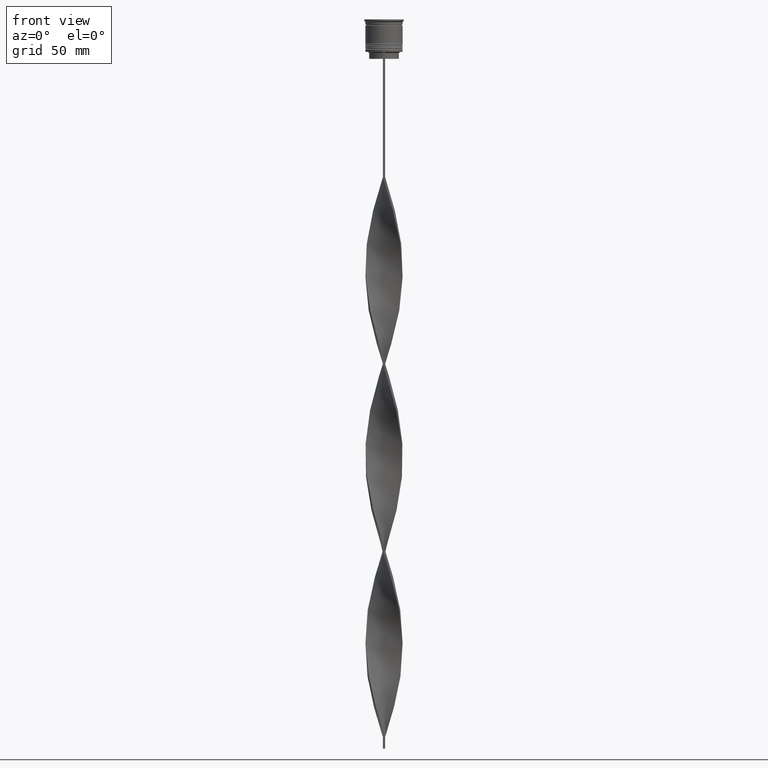
[diagram: clean part render]
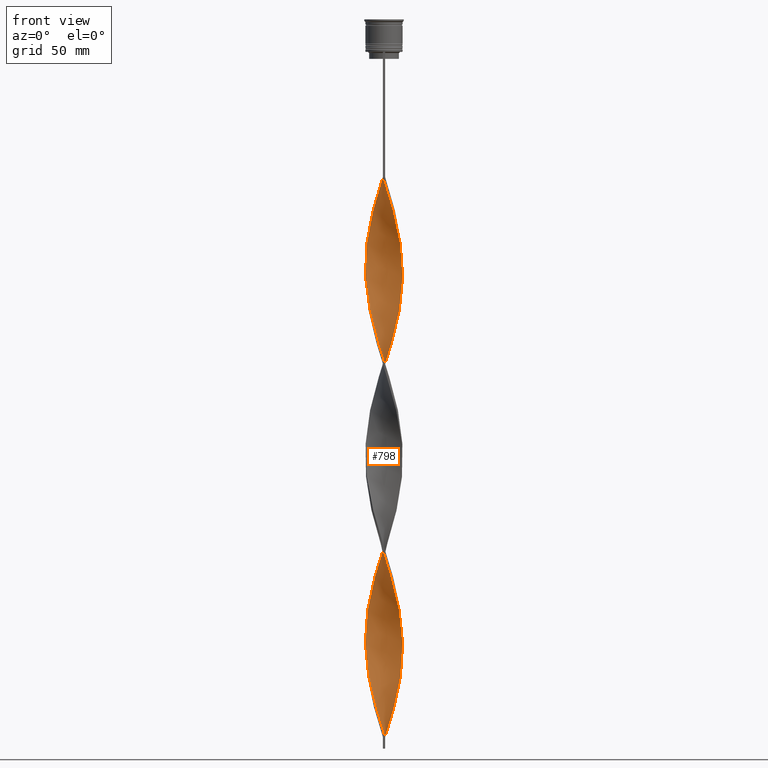
[diagram: same view with one face highlighted and labeled with its STEP entity id]
A machine part, front view. The second image highlights one B-rep face of the part: STEP entity #798.
In plain terms, the highlighted face is a freeform B-spline surface patch.
Its self-contained STEP definition (entity closure, byte-faithful):
#10 = CARTESIAN_POINT ( 'NONE',  ( 7.355047443376720118, 3.186420735822192096, -280.8833333333333826 ) ) ;
#36 = CARTESIAN_POINT ( 'NONE',  ( -3.534302299652435142, -7.221957428453229966, -218.6250000000000568 ) ) ;
#42 = CARTESIAN_POINT ( 'NONE',  ( -2.947664213147154655, 7.453943633173751415, -76.03333333333334565 ) ) ;
#53 = CARTESIAN_POINT ( 'NONE',  ( -6.901056943637172481, 4.077427260010560772, -176.4499999999999886 ) ) ;
#67 = CARTESIAN_POINT ( 'NONE',  ( 2.361026126641885714, 7.685929837894286187, -142.3083333333333371 ) ) ;
#73 = CARTESIAN_POINT ( 'NONE',  ( 5.776330198885578859, -5.593028810685832575, -250.7583333333333258 ) ) ;
#79 = CARTESIAN_POINT ( 'NONE',  ( -7.920097061150122464, 1.385649445451608619, -102.1416666666666799 ) ) ;
#99 = CARTESIAN_POINT ( 'NONE',  ( 4.830271518912643280, -6.427786469485482712, -246.7416666666666742 ) ) ;
#104 = CARTESIAN_POINT ( 'NONE',  ( -7.685929837894279970, -2.361026126641882605, -114.1916666666666771 ) ) ;
#110 = CARTESIAN_POINT ( 'NONE',  ( 7.355047443376720118, 3.186420735822192096, -280.8833333333333826 ) ) ;
#117 = CARTESIAN_POINT ( 'NONE',  ( -6.901056943637167151, -4.077427260010556331, -120.2166666666666686 ) ) ;
#123 = CARTESIAN_POINT ( 'NONE',  ( -3.765275523391983015, -7.104270692806150755, -134.2750000000000341 ) ) ;
#128 = CARTESIAN_POINT ( 'NONE',  ( -2.947664213147158652, -7.453943633173757632, -220.6333333333333542 ) ) ;
#135 = CARTESIAN_POINT ( 'NONE',  ( -7.453943633173752303, -2.947664213147154655, -116.2000000000000028 ) ) ;
#140 = CARTESIAN_POINT ( 'NONE',  ( -1.385649445451609063, -7.920097061150122464, -142.3083333333333371 ) ) ;
#144 = CARTESIAN_POINT ( 'NONE',  ( -6.427786469485481824, -4.830271518912644169, -206.5750000000000171 ) ) ;
#152 = CARTESIAN_POINT ( 'NONE',  ( -1.996607696852002345, -7.762960627548698866, -140.3000000000000114 ) ) ;
#163 = CARTESIAN_POINT ( 'NONE',  ( -6.010407640085651870, 5.303300858899104853, -88.08333333333334281 ) ) ;
#169 = CARTESIAN_POINT ( 'NONE',  ( 3.765275523391985679, -7.104270692806157861, -242.7250000000000227 ) ) ;
#174 = CARTESIAN_POINT ( 'NONE',  ( -7.685929837894279970, -2.361026126641882605, -114.1916666666666771 ) ) ;
#186 = CARTESIAN_POINT ( 'NONE',  ( -4.077427260010561660, -6.901056943637172481, -216.6166666666666742 ) ) ;
#192 = CARTESIAN_POINT ( 'NONE',  ( 3.534302299652426704, -7.221957428453226413, -158.3750000000000284 ) ) ;
#198 = CARTESIAN_POINT ( 'NONE',  ( -1.745319890619415171, 7.823289492240983023, -232.6833333333333371 ) ) ;
#205 = CARTESIAN_POINT ( 'NONE',  ( 0.4999999999999989453, -7.999999999999996447, -309.0000000000000000 ) ) ;
#213 = CARTESIAN_POINT ( 'NONE',  ( -6.580156458821110554, -4.620552220368685958, -282.8916666666667084 ) ) ;
#217 = CARTESIAN_POINT ( 'NONE',  ( 6.427786469485482712, 4.830271518912642392, -126.2416666666666600 ) ) ;
#219 = CARTESIAN_POINT ( 'NONE',  ( -3.186420735822189432, -7.355047443376712124, -296.9499999999999886 ) ) ;
#231 = CARTESIAN_POINT ( 'NONE',  ( -4.620552220368685958, 6.580156458821110554, -242.7250000000000227 ) ) ;
#235 = CARTESIAN_POINT ( 'NONE',  ( 7.355047443376720118, 3.186420735822192096, -120.2166666666666686 ) ) ;
#237 = CARTESIAN_POINT ( 'NONE',  ( -7.920097061150122464, 1.385649445451608619, -262.8083333333333371 ) ) ;
#243 = CARTESIAN_POINT ( 'NONE',  ( 0.5000000000000008882, 8.000000000000003553, -309.0000000000000000 ) ) ;
#247 = CARTESIAN_POINT ( 'NONE',  ( 0.4999999999999989453, -7.999999999999996447, -309.0000000000000000 ) ) ;
#251 = CARTESIAN_POINT ( 'NONE',  ( -4.830271518912642392, 6.427786469485483600, -166.4083333333333599 ) ) ;
#253 = CARTESIAN_POINT ( 'NONE',  ( -1.385649445451609063, -7.920097061150122464, -302.9750000000000227 ) ) ;
#266 = CARTESIAN_POINT ( 'NONE',  ( -6.766028581145814513, 4.297773521152309151, -252.7666666666667084 ) ) ;
#283 = CARTESIAN_POINT ( 'NONE',  ( 0.5000000000000002220, 2.666666666666670515, -309.0000000000000000 ) ) ;
#291 = CARTESIAN_POINT ( 'NONE',  ( -7.920097061150121576, 1.385649445451608841, -262.8083333333332803 ) ) ;
#294 = CARTESIAN_POINT ( 'NONE',  ( 5.303300858899110182, -6.010407640085657199, -88.08333333333334281 ) ) ;
#307 = CARTESIAN_POINT ( 'NONE',  ( -0.1296136545969470699, 8.039350853412313924, -150.3416666666666401 ) ) ;
#313 = CARTESIAN_POINT ( 'NONE',  ( 7.920097061150128681, 1.385649445451609285, -274.8583333333332916 ) ) ;
#330 = CARTESIAN_POINT ( 'NONE',  ( -4.620552220368688623, -6.580156458821115883, -214.6083333333333769 ) ) ;
#338 = CARTESIAN_POINT ( 'NONE',  ( -4.620552220368685958, 6.580156458821110554, -82.05833333333335133 ) ) ;
#358 = CARTESIAN_POINT ( 'NONE',  ( 7.685929837894286187, -2.361026126641885270, -262.8083333333332803 ) ) ;
#369 = CARTESIAN_POINT ( 'NONE',  ( 7.960649146587693181, -1.129613654596948402, -106.1583333333333456 ) ) ;
#375 = CARTESIAN_POINT ( 'NONE',  ( 3.186420735822192096, -7.355047443376720118, -240.7166666666666686 ) ) ;
#387 = CARTESIAN_POINT ( 'NONE',  ( 8.039350853412313924, 0.1296136545969474863, -110.1750000000000114 ) ) ;
#395 = CARTESIAN_POINT ( 'NONE',  ( -6.766028581145818954, -4.297773521152311815, -204.5666666666666629 ) ) ;
#401 = CARTESIAN_POINT ( 'NONE',  ( 6.901056943637168040, 4.077427260010555443, -200.5500000000000114 ) ) ;
#408 = CARTESIAN_POINT ( 'NONE',  ( 5.303300858899110182, -6.010407640085657199, -248.7500000000000000 ) ) ;
#419 = CARTESIAN_POINT ( 'NONE',  ( -7.999999999999996447, -0.4999999999999993339, -108.1666666666666714 ) ) ;
#426 = CARTESIAN_POINT ( 'NONE',  ( -7.999999999999996447, -0.4999999999999993339, -108.1666666666666714 ) ) ;
#432 = CARTESIAN_POINT ( 'NONE',  ( -1.745319890619418057, -7.823289492240988352, -224.6500000000000057 ) ) ;
#439 = CARTESIAN_POINT ( 'NONE',  ( -2.361026126641883049, 7.685929837894279082, -74.02500000000000568 ) ) ;
#444 = CARTESIAN_POINT ( 'NONE',  ( -6.901056943637167151, -4.077427260010556331, -120.2166666666666686 ) ) ;
#449 = CARTESIAN_POINT ( 'NONE',  ( -6.766028581145818954, -4.297773521152311815, -204.5666666666666629 ) ) ;
#454 = CARTESIAN_POINT ( 'NONE',  ( -6.580156458821110554, -4.620552220368685958, -122.2250000000000085 ) ) ;
#458 = CARTESIAN_POINT ( 'NONE',  ( 2.361026126641882161, -7.685929837894279970, -154.3583333333333201 ) ) ;
#465 = CARTESIAN_POINT ( 'NONE',  ( -7.979723957281220414, -0.7576315500242771783, -192.5166666666666799 ) ) ;
#472 = CARTESIAN_POINT ( 'NONE',  ( -5.106790515527257490, 6.178243328853340266, -84.06666666666667709 ) ) ;
#489 = CARTESIAN_POINT ( 'NONE',  ( 3.186420735822192096, -7.355047443376720118, -240.7166666666666686 ) ) ;
#494 = CARTESIAN_POINT ( 'NONE',  ( 1.745319890619414060, -7.823289492240984799, -152.3499999999999943 ) ) ;
#501 = CARTESIAN_POINT ( 'NONE',  ( 1.996607696852003233, 7.762960627548698866, -220.6333333333333542 ) ) ;
#514 = CARTESIAN_POINT ( 'NONE',  ( 6.580156458821112331, 4.620552220368682406, -202.5583333333333371 ) ) ;
#525 = CARTESIAN_POINT ( 'NONE',  ( 1.129613654596949068, 7.960649146587693181, -306.9916666666667879 ) ) ;
#533 = CARTESIAN_POINT ( 'NONE',  ( -4.077427260010556331, 6.901056943637167151, -240.7166666666666686 ) ) ;
#538 = CARTESIAN_POINT ( 'NONE',  ( 6.766028581145818954, 4.297773521152312703, -124.2333333333333343 ) ) ;
#557 = CARTESIAN_POINT ( 'NONE',  ( -6.010407640085651870, 5.303300858899104853, -248.7500000000000000 ) ) ;
#560 = CARTESIAN_POINT ( 'NONE',  ( -0.1296136545969470422, 8.039350853412313924, -150.3416666666666401 ) ) ;
#563 = CARTESIAN_POINT ( 'NONE',  ( -2.607565948252396737, -7.605824193947275269, -298.9583333333333712 ) ) ;
#570 = CARTESIAN_POINT ( 'NONE',  ( 6.427786469485481824, 4.830271518912641504, -286.9083333333333599 ) ) ;
#575 = CARTESIAN_POINT ( 'NONE',  ( 7.685929837894280858, 2.361026126641878609, -194.5250000000000341 ) ) ;
#595 = CARTESIAN_POINT ( 'NONE',  ( 1.385649445451606621, 7.920097061150121576, -222.6416666666667084 ) ) ;
#600 = CARTESIAN_POINT ( 'NONE',  ( 1.129613654596949290, 7.960649146587693181, -146.3250000000000171 ) ) ;
#615 = CARTESIAN_POINT ( 'NONE',  ( 7.355047443376720118, 3.186420735822192096, -120.2166666666666686 ) ) ;
#621 = FACE_OUTER_BOUND ( 'NONE', #2192, .T. ) ;
#633 = CARTESIAN_POINT ( 'NONE',  ( 6.766028581145818954, 4.297773521152312703, -124.2333333333333343 ) ) ;
#640 = CARTESIAN_POINT ( 'NONE',  ( 5.106790515527261931, 6.178243328853344707, -292.9333333333333371 ) ) ;
#643 = CARTESIAN_POINT ( 'NONE',  ( -0.4999999999999998890, 7.999999999999996447, -68.00000000000000000 ) ) ;
#649 = CARTESIAN_POINT ( 'NONE',  ( 7.823289492240990128, -1.745319890619416725, -104.1500000000000057 ) ) ;
#656 = CARTESIAN_POINT ( 'NONE',  ( 6.580156458821114995, -4.620552220368690399, -254.7749999999999488 ) ) ;
#681 = CARTESIAN_POINT ( 'NONE',  ( -2.947664213147158652, -7.453943633173757632, -220.6333333333333542 ) ) ;
#693 = CARTESIAN_POINT ( 'NONE',  ( 6.580156458821114995, -4.620552220368690399, -94.10833333333334849 ) ) ;
#702 = CARTESIAN_POINT ( 'NONE',  ( -7.960649146587693181, 1.129613654596953065, -186.4916666666667027 ) ) ;
#709 = CARTESIAN_POINT ( 'NONE',  ( 7.685929837894280858, 2.361026126641878609, -194.5250000000000341 ) ) ;
#713 = CARTESIAN_POINT ( 'NONE',  ( 0.1296136545969480414, -8.039350853412315701, -230.6750000000000114 ) ) ;
#719 = CARTESIAN_POINT ( 'NONE',  ( 7.979723957281222191, 0.7576315500242781775, -272.8500000000000227 ) ) ;
#725 = CARTESIAN_POINT ( 'NONE',  ( 5.106790515527256602, -6.178243328853340266, -164.3999999999999773 ) ) ;
#732 = CARTESIAN_POINT ( 'NONE',  ( -4.830271518912641504, 6.427786469485482712, -166.4083333333333599 ) ) ;
#743 = CARTESIAN_POINT ( 'NONE',  ( 7.762960627548698866, -1.996607696852002345, -180.4666666666666686 ) ) ;
#748 = CARTESIAN_POINT ( 'NONE',  ( 8.039350853412308595, -0.1296136545969525100, -186.4916666666667027 ) ) ;
#754 = CARTESIAN_POINT ( 'NONE',  ( -7.920097061150129569, -1.385649445451604622, -194.5250000000000341 ) ) ;
#759 = CARTESIAN_POINT ( 'NONE',  ( -7.104270692806151644, 3.765275523391983459, -94.10833333333334849 ) ) ;
#763 = CARTESIAN_POINT ( 'NONE',  ( -4.830271518912638840, -6.427786469485477383, -130.2583333333333542 ) ) ;
#769 = CARTESIAN_POINT ( 'NONE',  ( -7.685929837894287076, 2.361026126641882605, -182.4749999999999943 ) ) ;
#776 = CARTESIAN_POINT ( 'NONE',  ( 8.039350853412310371, -0.1296136545969525100, -186.4916666666667027 ) ) ;
#783 = CARTESIAN_POINT ( 'NONE',  ( 5.593028810685827246, -5.776330198885574418, -166.4083333333333599 ) ) ;
#792 = CARTESIAN_POINT ( 'NONE',  ( 7.221957428453231742, -3.534302299652430701, -258.7916666666666288 ) ) ;
#798 = ADVANCED_FACE ( 'NONE', ( #621 ), #2179, .T. ) ;
#802 = CARTESIAN_POINT ( 'NONE',  ( -1.385649445451609285, -7.920097061150121576, -142.3083333333333371 ) ) ;
#811 = CARTESIAN_POINT ( 'NONE',  ( 0.7576315500242793988, 7.979723957281213309, -224.6500000000000057 ) ) ;
#824 = CARTESIAN_POINT ( 'NONE',  ( 1.996607696852003233, 7.762960627548698866, -220.6333333333333542 ) ) ;
#841 = CARTESIAN_POINT ( 'NONE',  ( -7.762960627548698866, 1.996607696852001457, -260.8000000000000114 ) ) ;
#844 = CARTESIAN_POINT ( 'NONE',  ( 0.1296136545969480136, -8.039350853412315701, -70.00833333333335418 ) ) ;
#847 = CARTESIAN_POINT ( 'NONE',  ( -0.7576315500242785106, -7.979723957281213309, -304.9833333333333485 ) ) ;
#853 = CARTESIAN_POINT ( 'NONE',  ( 5.593028810685833463, 5.776330198885578859, -290.9250000000000682 ) ) ;
#861 = CARTESIAN_POINT ( 'NONE',  ( -4.297773521152310039, -6.766028581145813625, -292.9333333333333371 ) ) ;
#866 = CARTESIAN_POINT ( 'NONE',  ( 7.453943633173757632, -2.947664213147156875, -100.1333333333333400 ) ) ;
#869 = CARTESIAN_POINT ( 'NONE',  ( -7.221957428453224637, -3.534302299652427148, -278.8750000000000000 ) ) ;
#883 = CARTESIAN_POINT ( 'NONE',  ( 0.7576315500242793988, 7.979723957281213309, -224.6500000000000057 ) ) ;
#886 = CARTESIAN_POINT ( 'NONE',  ( -6.178243328853344707, 5.106790515527261931, -172.4333333333333371 ) ) ;
#888 = CARTESIAN_POINT ( 'NONE',  ( -7.999999999999996447, -0.4999999999999993339, -268.8333333333333712 ) ) ;
#903 = CARTESIAN_POINT ( 'NONE',  ( -3.765275523391983459, -7.104270692806151644, -294.9416666666667197 ) ) ;
#907 = CARTESIAN_POINT ( 'NONE',  ( 3.186420735822192096, -7.355047443376720118, -80.05000000000001137 ) ) ;
#941 = CARTESIAN_POINT ( 'NONE',  ( 8.000000000000003553, -0.5000000000000004441, -108.1666666666666714 ) ) ;
#947 = CARTESIAN_POINT ( 'NONE',  ( 6.010407640085657199, 5.303300858899108405, -288.9166666666666856 ) ) ;
#965 = CARTESIAN_POINT ( 'NONE',  ( -0.4999999999999998890, -8.000000000000003553, -228.6666666666666856 ) ) ;
#976 = CARTESIAN_POINT ( 'NONE',  ( 6.901056943637172481, -4.077427260010559884, -96.11666666666667425 ) ) ;
#984 = CARTESIAN_POINT ( 'NONE',  ( -7.823289492240988352, 1.745319890619417613, -184.4833333333333201 ) ) ;
#994 = CARTESIAN_POINT ( 'NONE',  ( -1.745319890619415171, 7.823289492240983023, -72.01666666666667993 ) ) ;
#1005 = CARTESIAN_POINT ( 'NONE',  ( 3.534302299652431145, 7.221957428453231742, -138.2916666666667140 ) ) ;
#1013 = CARTESIAN_POINT ( 'NONE',  ( 8.000000000000003553, -0.5000000000000004441, -268.8333333333333712 ) ) ;
#1019 = CARTESIAN_POINT ( 'NONE',  ( 7.960649146587686964, 1.129613654596949512, -190.5083333333333542 ) ) ;
#1024 = CARTESIAN_POINT ( 'NONE',  ( 7.762960627548706860, 1.996607696852002789, -276.8666666666667311 ) ) ;
#1032 = CARTESIAN_POINT ( 'NONE',  ( -7.920097061150128681, -1.385649445451604844, -194.5250000000000341 ) ) ;
#1037 = CARTESIAN_POINT ( 'NONE',  ( 4.297773521152310927, 6.766028581145813625, -212.6000000000000227 ) ) ;
#1043 = CARTESIAN_POINT ( 'NONE',  ( 1.996607696852003233, -7.762960627548705084, -236.6999999999999886 ) ) ;
#1048 = CARTESIAN_POINT ( 'NONE',  ( 7.104270692806154308, -3.765275523391980794, -174.4416666666666629 ) ) ;
#1051 = LINE ( 'NONE', #3581, #2873 ) ;
#1057 = CARTESIAN_POINT ( 'NONE',  ( 6.766028581145813625, -4.297773521152310039, -172.4333333333333371 ) ) ;
#1062 = CARTESIAN_POINT ( 'NONE',  ( -3.534302299652435142, -7.221957428453229966, -218.6250000000000284 ) ) ;
#1074 = CARTESIAN_POINT ( 'NONE',  ( -0.4999999999999998890, 7.999999999999996447, -68.00000000000000000 ) ) ;
#1078 = CARTESIAN_POINT ( 'NONE',  ( -7.979723957281215085, 0.7576315500242779555, -104.1500000000000057 ) ) ;
#1084 = CARTESIAN_POINT ( 'NONE',  ( -7.104270692806159637, -3.765275523391982126, -202.5583333333333371 ) ) ;
#1090 = CARTESIAN_POINT ( 'NONE',  ( 7.605824193947272605, -2.607565948252400290, -178.4583333333333144 ) ) ;
#1094 = CARTESIAN_POINT ( 'NONE',  ( 6.010407640085650982, -5.303300858899105741, -168.4166666666666572 ) ) ;
#1100 = CARTESIAN_POINT ( 'NONE',  ( -0.4999999999999998890, -8.000000000000003553, -228.6666666666666856 ) ) ;
#1106 = CARTESIAN_POINT ( 'NONE',  ( -7.823289492240983023, -1.745319890619414727, -112.1833333333333229 ) ) ;
#1129 = CARTESIAN_POINT ( 'NONE',  ( 4.077427260010555443, -6.901056943637167151, -160.3833333333333258 ) ) ;
#1138 = CARTESIAN_POINT ( 'NONE',  ( -8.039350853412308595, 0.1296136545969479303, -266.8249999999999886 ) ) ;
#1152 = CARTESIAN_POINT ( 'NONE',  ( 5.776330198885571754, 5.593028810685829910, -206.5750000000000171 ) ) ;
#1156 = CARTESIAN_POINT ( 'NONE',  ( 4.077427260010560772, 6.901056943637172481, -136.2833333333333314 ) ) ;
#1159 = CARTESIAN_POINT ( 'NONE',  ( -7.453943633173752303, -2.947664213147154655, -276.8666666666667311 ) ) ;
#1168 = CARTESIAN_POINT ( 'NONE',  ( -1.385649445451609285, -7.920097061150121576, -302.9750000000000227 ) ) ;
#1172 = CARTESIAN_POINT ( 'NONE',  ( 0.5000000000000008882, 8.000000000000003553, -148.3333333333333428 ) ) ;
#1174 = CARTESIAN_POINT ( 'NONE',  ( -7.979723957281215085, 0.7576315500242779555, -264.8166666666667197 ) ) ;
#1180 = CARTESIAN_POINT ( 'NONE',  ( 6.766028581145818954, 4.297773521152312703, -284.9000000000000341 ) ) ;
#1189 = CARTESIAN_POINT ( 'NONE',  ( 7.221957428453223748, 3.534302299652429369, -198.5416666666667140 ) ) ;
#1194 = CARTESIAN_POINT ( 'NONE',  ( 4.297773521152313592, -6.766028581145818954, -84.06666666666667709 ) ) ;
#1198 = CARTESIAN_POINT ( 'NONE',  ( -7.762960627548698866, 1.996607696852001457, -260.8000000000000114 ) ) ;
#1217 = CARTESIAN_POINT ( 'NONE',  ( -7.823289492240983023, -1.745319890619414727, -272.8500000000000227 ) ) ;
#1220 = CARTESIAN_POINT ( 'NONE',  ( 8.039350853412313924, 0.1296136545969474863, -110.1749999999999972 ) ) ;
#1230 = CARTESIAN_POINT ( 'NONE',  ( 0.5000000000000008882, 8.000000000000003553, -309.0000000000000000 ) ) ;
#1234 = CARTESIAN_POINT ( 'NONE',  ( -1.745319890619415171, 7.823289492240983023, -232.6833333333333371 ) ) ;
#1246 = CARTESIAN_POINT ( 'NONE',  ( 2.607565948252398513, -7.605824193947282374, -78.04166666666667140 ) ) ;
#1256 = CARTESIAN_POINT ( 'NONE',  ( 7.104270692806158749, 3.765275523391986123, -282.8916666666667084 ) ) ;
#1273 = CARTESIAN_POINT ( 'NONE',  ( -0.4999999999999998890, -8.000000000000003553, -68.00000000000000000 ) ) ;
#1281 = CARTESIAN_POINT ( 'NONE',  ( 3.534302299652431145, 7.221957428453231742, -298.9583333333334281 ) ) ;
#1298 = CARTESIAN_POINT ( 'NONE',  ( -8.039350853412315701, -0.1296136545969501508, -190.5083333333333826 ) ) ;
#1311 = CARTESIAN_POINT ( 'NONE',  ( 0.5000000000000008882, 8.000000000000003553, -148.3333333333333428 ) ) ;
#1317 = CARTESIAN_POINT ( 'NONE',  ( -7.762960627548706860, -1.996607696852001901, -196.5333333333333314 ) ) ;
#1324 = CARTESIAN_POINT ( 'NONE',  ( -7.823289492240983023, -1.745319890619414727, -112.1833333333333229 ) ) ;
#1342 = CARTESIAN_POINT ( 'NONE',  ( 6.178243328853345595, -5.106790515527261043, -252.7666666666667084 ) ) ;
#1347 = CARTESIAN_POINT ( 'NONE',  ( 6.178243328853342042, 5.106790515527255714, -204.5666666666666629 ) ) ;
#1353 = CARTESIAN_POINT ( 'NONE',  ( -5.106790515527262819, -6.178243328853344707, -212.6000000000000227 ) ) ;
#1362 = CARTESIAN_POINT ( 'NONE',  ( -3.534302299652427592, 7.221957428453224637, -78.04166666666667140 ) ) ;
#1367 = CARTESIAN_POINT ( 'NONE',  ( 6.427786469485475607, -4.830271518912641504, -170.4250000000000398 ) ) ;
#1373 = CARTESIAN_POINT ( 'NONE',  ( -7.453943633173757632, 2.947664213147157763, -180.4666666666666686 ) ) ;
#1379 = CARTESIAN_POINT ( 'NONE',  ( 0.4999999999999989453, -7.999999999999996447, -148.3333333333333428 ) ) ;
#1387 = CARTESIAN_POINT ( 'NONE',  ( -8.039350853412308595, 0.1296136545969479303, -106.1583333333333456 ) ) ;
#1393 = CARTESIAN_POINT ( 'NONE',  ( -5.776330198885575307, 5.593028810685836127, -170.4250000000000398 ) ) ;
#1402 = CARTESIAN_POINT ( 'NONE',  ( 6.010407640085650982, -5.303300858899105741, -168.4166666666666572 ) ) ;
#1408 = CARTESIAN_POINT ( 'NONE',  ( -7.104270692806150755, 3.765275523391983015, -94.10833333333334849 ) ) ;
#1414 = CARTESIAN_POINT ( 'NONE',  ( 4.297773521152313592, -6.766028581145818954, -244.7333333333333201 ) ) ;
#1419 = CARTESIAN_POINT ( 'NONE',  ( -7.920097061150121576, 1.385649445451608841, -102.1416666666666941 ) ) ;
#1424 = CARTESIAN_POINT ( 'NONE',  ( -5.593028810685828134, 5.776330198885573530, -246.7416666666667027 ) ) ;
#1431 = CARTESIAN_POINT ( 'NONE',  ( -6.010407640085658088, -5.303300858899107517, -208.5833333333333428 ) ) ;
#1437 = CARTESIAN_POINT ( 'NONE',  ( -7.960649146587688740, -1.129613654596947070, -110.1749999999999972 ) ) ;
#1460 = CARTESIAN_POINT ( 'NONE',  ( 4.297773521152310927, 6.766028581145813625, -212.6000000000000227 ) ) ;
#1466 = CARTESIAN_POINT ( 'NONE',  ( 5.106790515527261931, 6.178243328853344707, -132.2666666666666799 ) ) ;
#1469 = CARTESIAN_POINT ( 'NONE',  ( -7.685929837894279970, -2.361026126641882605, -274.8583333333332916 ) ) ;
#1480 = CARTESIAN_POINT ( 'NONE',  ( 7.823289492240984799, 1.745319890619413616, -192.5166666666666799 ) ) ;
#1484 = CARTESIAN_POINT ( 'NONE',  ( 2.947664213147157763, 7.453943633173757632, -140.3000000000000114 ) ) ;
#1487 = CARTESIAN_POINT ( 'NONE',  ( 0.4999999999999989453, -7.999999999999996447, -309.0000000000000000 ) ) ;
#1500 = VERTEX_POINT ( 'NONE', #1230 ) ;
#1504 = CARTESIAN_POINT ( 'NONE',  ( -5.303300858899108405, 6.010407640085658088, -168.4166666666666572 ) ) ;
#1522 = CARTESIAN_POINT ( 'NONE',  ( 7.999999999999996447, 0.4999999999999983902, -188.5000000000000000 ) ) ;
#1546 = CARTESIAN_POINT ( 'NONE',  ( 6.178243328853342042, 5.106790515527255714, -204.5666666666666629 ) ) ;
#1549 = CARTESIAN_POINT ( 'NONE',  ( -2.607565948252397625, 7.605824193947282374, -158.3750000000000284 ) ) ;
#1563 = CARTESIAN_POINT ( 'NONE',  ( -0.7576315500242776224, 7.979723957281220414, -152.3499999999999943 ) ) ;
#1571 = CARTESIAN_POINT ( 'NONE',  ( 7.762960627548706860, 1.996607696852002789, -276.8666666666667311 ) ) ;
#1591 = CARTESIAN_POINT ( 'NONE',  ( 4.077427260010560772, 6.901056943637172481, -296.9499999999999886 ) ) ;
#1600 = CARTESIAN_POINT ( 'NONE',  ( -5.106790515527257490, 6.178243328853340266, -84.06666666666667709 ) ) ;
#1609 = CARTESIAN_POINT ( 'NONE',  ( 7.979723957281222191, 0.7576315500242781775, -112.1833333333333229 ) ) ;
#1615 = CARTESIAN_POINT ( 'NONE',  ( -5.106790515527262819, -6.178243328853344707, -212.6000000000000227 ) ) ;
#1628 = CARTESIAN_POINT ( 'NONE',  ( 4.077427260010560772, 6.901056943637172481, -136.2833333333333314 ) ) ;
#1635 = CARTESIAN_POINT ( 'NONE',  ( 5.303300858899110182, -6.010407640085657199, -248.7500000000000000 ) ) ;
#1642 = CARTESIAN_POINT ( 'NONE',  ( 7.762960627548698866, -1.996607696852002345, -180.4666666666666686 ) ) ;
#1647 = CARTESIAN_POINT ( 'NONE',  ( 5.106790515527261931, 6.178243328853344707, -132.2666666666666799 ) ) ;
#1654 = CARTESIAN_POINT ( 'NONE',  ( 0.7576315500242786216, -7.979723957281222191, -232.6833333333333371 ) ) ;
#1661 = CARTESIAN_POINT ( 'NONE',  ( 6.580156458821112331, 4.620552220368682406, -202.5583333333333371 ) ) ;
#1672 = CARTESIAN_POINT ( 'NONE',  ( 5.776330198885578859, -5.593028810685832575, -250.7583333333332973 ) ) ;
#1680 = CARTESIAN_POINT ( 'NONE',  ( -7.762960627548698866, 1.996607696852001457, -100.1333333333333400 ) ) ;
#1685 = CARTESIAN_POINT ( 'NONE',  ( -4.297773521152310039, -6.766028581145813625, -132.2666666666666799 ) ) ;
#1690 = CARTESIAN_POINT ( 'NONE',  ( -5.593028810685836127, -5.776330198885574418, -210.5916666666666686 ) ) ;
#1699 = CARTESIAN_POINT ( 'NONE',  ( -5.776330198885573530, -5.593028810685827246, -126.2416666666666600 ) ) ;
#1703 = CARTESIAN_POINT ( 'NONE',  ( 1.745319890619414060, -7.823289492240984799, -152.3499999999999943 ) ) ;
#1708 = CARTESIAN_POINT ( 'NONE',  ( -2.361026126641883049, -7.685929837894287076, -222.6416666666667084 ) ) ;
#1713 = CARTESIAN_POINT ( 'NONE',  ( -7.355047443376712124, 3.186420735822188988, -96.11666666666667425 ) ) ;
#1720 = CARTESIAN_POINT ( 'NONE',  ( -7.762960627548698866, 1.996607696852001457, -100.1333333333333400 ) ) ;
#1728 = CARTESIAN_POINT ( 'NONE',  ( 0.7576315500242786216, -7.979723957281222191, -232.6833333333333371 ) ) ;
#1736 = CARTESIAN_POINT ( 'NONE',  ( -4.077427260010556331, 6.901056943637167151, -80.05000000000001137 ) ) ;
#1747 = CARTESIAN_POINT ( 'NONE',  ( 8.039350853412313924, 0.1296136545969474863, -270.8416666666666401 ) ) ;
#1753 = CARTESIAN_POINT ( 'NONE',  ( -5.303300858899104853, -6.010407640085650982, -128.2500000000000000 ) ) ;
#1759 = CARTESIAN_POINT ( 'NONE',  ( -7.960649146587688740, -1.129613654596947070, -270.8416666666666401 ) ) ;
#1773 = CARTESIAN_POINT ( 'NONE',  ( -7.104270692806151644, 3.765275523391983459, -254.7749999999999488 ) ) ;
#1784 = CARTESIAN_POINT ( 'NONE',  ( 0.4999999999999995559, -2.666666666666663410, -309.0000000000000000 ) ) ;
#1793 = CARTESIAN_POINT ( 'NONE',  ( -4.830271518912639728, -6.427786469485477383, -290.9250000000000682 ) ) ;
#1799 = CARTESIAN_POINT ( 'NONE',  ( 7.104270692806158749, 3.765275523391986123, -122.2250000000000085 ) ) ;
#1801 = CARTESIAN_POINT ( 'NONE',  ( -2.947664213147154655, 7.453943633173751415, -236.6999999999999886 ) ) ;
#1813 = CARTESIAN_POINT ( 'NONE',  ( -5.776330198885573530, -5.593028810685827246, -286.9083333333334167 ) ) ;
#1817 = CARTESIAN_POINT ( 'NONE',  ( 7.979723957281222191, 0.7576315500242781775, -112.1833333333333229 ) ) ;
#1819 = CARTESIAN_POINT ( 'NONE',  ( -3.534302299652427592, 7.221957428453224637, -238.7083333333333144 ) ) ;
#1830 = CARTESIAN_POINT ( 'NONE',  ( 7.453943633173752303, 2.947664213147153767, -196.5333333333333314 ) ) ;
#1834 = CARTESIAN_POINT ( 'NONE',  ( 1.385649445451609729, -7.920097061150128681, -74.02500000000000568 ) ) ;
#1842 = CARTESIAN_POINT ( 'NONE',  ( 5.106790515527261931, 6.178243328853344707, -292.9333333333333371 ) ) ;
#1850 = CARTESIAN_POINT ( 'NONE',  ( -5.593028810685828134, 5.776330198885573530, -246.7416666666666742 ) ) ;
#1856 = CARTESIAN_POINT ( 'NONE',  ( -0.7576315500242776224, 7.979723957281220414, -152.3499999999999943 ) ) ;
#1868 = CARTESIAN_POINT ( 'NONE',  ( 3.186420735822192096, -7.355047443376720118, -80.05000000000001137 ) ) ;
#1873 = CARTESIAN_POINT ( 'NONE',  ( 7.960649146587693181, -1.129613654596948624, -106.1583333333333456 ) ) ;
#1877 = VERTEX_POINT ( 'NONE', #3827 ) ;
#1886 = CARTESIAN_POINT ( 'NONE',  ( 6.010407640085657199, 5.303300858899108405, -128.2500000000000000 ) ) ;
#1894 = CARTESIAN_POINT ( 'NONE',  ( 4.620552220368690399, 6.580156458821114995, -294.9416666666667197 ) ) ;
#1897 = CARTESIAN_POINT ( 'NONE',  ( -1.129613654596947514, 7.960649146587686964, -70.00833333333335418 ) ) ;
#1913 = CARTESIAN_POINT ( 'NONE',  ( 7.221957428453231742, -3.534302299652430701, -258.7916666666666288 ) ) ;
#1928 = CARTESIAN_POINT ( 'NONE',  ( 0.7576315500242786216, -7.979723957281222191, -72.01666666666667993 ) ) ;
#1936 = CARTESIAN_POINT ( 'NONE',  ( -2.361026126641883049, -7.685929837894287076, -222.6416666666667084 ) ) ;
#1942 = CARTESIAN_POINT ( 'NONE',  ( -3.534302299652427592, 7.221957428453224637, -78.04166666666667140 ) ) ;
#1948 = CARTESIAN_POINT ( 'NONE',  ( 7.453943633173757632, -2.947664213147156875, -100.1333333333333400 ) ) ;
#1955 = CARTESIAN_POINT ( 'NONE',  ( -7.104270692806160525, -3.765275523391982571, -202.5583333333333371 ) ) ;
#1961 = CARTESIAN_POINT ( 'NONE',  ( 7.221957428453223748, 3.534302299652429369, -198.5416666666666856 ) ) ;
#1967 = CARTESIAN_POINT ( 'NONE',  ( -2.607565948252397625, 7.605824193947283263, -158.3750000000000284 ) ) ;
#1974 = CARTESIAN_POINT ( 'NONE',  ( 0.5000000000000008882, 8.000000000000003553, -309.0000000000000000 ) ) ;
#1982 = CARTESIAN_POINT ( 'NONE',  ( -1.996607696852002345, -7.762960627548698866, -140.3000000000000114 ) ) ;
#1993 = CARTESIAN_POINT ( 'NONE',  ( -7.960649146587693181, 1.129613654596953065, -186.4916666666667027 ) ) ;
#2000 = CARTESIAN_POINT ( 'NONE',  ( 1.129613654596949290, 7.960649146587693181, -306.9916666666667311 ) ) ;
#2004 = CARTESIAN_POINT ( 'NONE',  ( 7.453943633173752303, 2.947664213147153767, -196.5333333333333314 ) ) ;
#2010 = CARTESIAN_POINT ( 'NONE',  ( -6.901056943637172481, 4.077427260010560772, -176.4499999999999886 ) ) ;
#2016 = CARTESIAN_POINT ( 'NONE',  ( -6.010407640085651870, 5.303300858899104853, -88.08333333333334281 ) ) ;
#2021 = CARTESIAN_POINT ( 'NONE',  ( 0.4999999999999989453, -7.999999999999996447, -148.3333333333333428 ) ) ;
#2025 = CARTESIAN_POINT ( 'NONE',  ( -1.385649445451608841, 7.920097061150129569, -154.3583333333333201 ) ) ;
#2031 = CARTESIAN_POINT ( 'NONE',  ( -4.830271518912639728, -6.427786469485477383, -130.2583333333333826 ) ) ;
#2037 = CARTESIAN_POINT ( 'NONE',  ( 7.605824193947273493, -2.607565948252400290, -178.4583333333333428 ) ) ;
#2045 = CARTESIAN_POINT ( 'NONE',  ( 8.000000000000003553, -0.5000000000000004441, -268.8333333333333712 ) ) ;
#2054 = CARTESIAN_POINT ( 'NONE',  ( -0.1296136545969484577, -8.039350853412310371, -146.3250000000000171 ) ) ;
#2059 = CARTESIAN_POINT ( 'NONE',  ( 1.385649445451606399, 7.920097061150122464, -222.6416666666667084 ) ) ;
#2073 = CARTESIAN_POINT ( 'NONE',  ( -7.453943633173752303, -2.947664213147154655, -276.8666666666667311 ) ) ;
#2093 = CARTESIAN_POINT ( 'NONE',  ( -2.607565948252396737, -7.605824193947274381, -298.9583333333334281 ) ) ;
#2096 = CARTESIAN_POINT ( 'NONE',  ( 2.361026126641885714, 7.685929837894286187, -142.3083333333333371 ) ) ;
#2114 = CARTESIAN_POINT ( 'NONE',  ( -0.1296136545969484577, -8.039350853412310371, -306.9916666666667311 ) ) ;
#2119 = CARTESIAN_POINT ( 'NONE',  ( -4.297773521152312703, 6.766028581145818954, -164.3999999999999773 ) ) ;
#2122 = CARTESIAN_POINT ( 'NONE',  ( -6.178243328853340266, -5.106790515527256602, -284.9000000000000341 ) ) ;
#2137 = CARTESIAN_POINT ( 'NONE',  ( -0.4999999999999998890, 7.999999999999996447, -228.6666666666666856 ) ) ;
#2143 = CARTESIAN_POINT ( 'NONE',  ( -4.297773521152310039, -6.766028581145813625, -292.9333333333333371 ) ) ;
#2155 = CARTESIAN_POINT ( 'NONE',  ( 5.303300858899105741, 6.010407640085650094, -208.5833333333333428 ) ) ;
#2159 = CARTESIAN_POINT ( 'NONE',  ( 8.000000000000003553, -0.5000000000000004441, -108.1666666666666714 ) ) ;
#2167 = CARTESIAN_POINT ( 'NONE',  ( 7.221957428453231742, -3.534302299652430701, -98.12500000000001421 ) ) ;
#2177 = CARTESIAN_POINT ( 'NONE',  ( -0.4999999999999998890, -8.000000000000003553, -68.00000000000000000 ) ) ;
#2179 =( BOUNDED_SURFACE ( )  B_SPLINE_SURFACE ( 1, 2, ( 
 ( #2177, #844, #2474, #1834, #2834, #2816, #907, #4103, #1194, #3470, #294, #2752, #3762, #4082, #3098, #3382, #866, #4015, #2769, #1873, #2159, #1220, #1817, #3446, #2429, #3699, #235, #1799, #538, #217, #2453, #3081, #1466, #3742, #1156, #2411, #1484, #2096, #4035, #600, #1172, #560, #1856, #3139, #3407, #1549, #3718, #3426, #2119, #251, #1504, #4056, #886, #2267, #53, #3842, #3557, #3887, #984, #702, #2242, #1298, #3821, #1032, #1317, #2898, #3239, #1955, #395, #3537, #2589, #2916, #1615, #330, #2569, #36, #681, #1936, #3219, #3578, #965, #3493, #1654, #2281, #3201, #2219, #375, #2878, #2939, #99, #1635, #73, #1342, #656, #3179, #1913, #3867, #358, #3160, #3512, #1013, #2610, #719, #313, #1571, #2854, #10, #1256, #2526, #3802, #947, #2200, #640, #1894, #1591, #1281, #2548, #3318, #3947, #2000, #1974 ),
 ( #1074, #3988, #3964, #439, #2715, #1362, #1736, #3657, #472, #3341, #2016, #3302, #2694, #759, #1713, #2303, #1680, #1419, #3016, #3286, #419, #1437, #1106, #174, #135, #2962, #117, #454, #2995, #1699, #1753, #2031, #2629, #2981, #3599, #2365, #152, #802, #3261, #2054, #1379, #2651, #494, #3926, #3032, #192, #1129, #2329, #2391, #3679, #1402, #3620, #3905, #1048, #2676, #1090, #743, #2346, #3636, #776, #1522, #4032, #1480, #575, #1830, #1189, #4011, #514, #1546, #1152, #2155, #3078, #1460, #2746, #3442, #3739, #824, #595, #883, #3404, #2137, #3695, #1234, #2831, #3422, #2408, #533, #231, #3112, #1850, #557, #3136, #266, #1773, #2813, #3714, #841, #291, #4100, #3054, #2491, #4079, #1217, #2765, #2073, #2471, #2448, #213, #3361, #1813, #3759, #1793, #861, #903, #3378, #2093, #3094, #1168, #2426, #2114, #247 ) ),
 .UNSPECIFIED., .F., .F., .F. ) 
 B_SPLINE_SURFACE_WITH_KNOTS ( ( 2, 2 ),
 ( 3, 2, 2, 2, 2, 2, 2, 2, 2, 2, 2, 2, 2, 2, 2, 2, 2, 2, 2, 2, 2, 2, 2, 2, 2, 2, 2, 2, 2, 2, 2, 2, 2, 2, 2, 2, 2, 2, 2, 2, 2, 2, 2, 2, 2, 2, 2, 2, 2, 2, 2, 2, 2, 2, 2, 2, 2, 2, 2, 2, 3 ),
 ( 0.000000000000000000, 1.000000000000000000 ),
 ( 0.000000000000000000, 0.01250000000000000069, 0.02500000000000000139, 0.03749999999999999861, 0.05000000000000000278, 0.06250000000000000000, 0.07499999999999999722, 0.08749999999999999445, 0.1000000000000000056, 0.1125000000000000028, 0.1250000000000000000, 0.1375000000000000111, 0.1499999999999999944, 0.1625000000000000056, 0.1749999999999999889, 0.1875000000000000000, 0.2000000000000000111, 0.2124999999999999944, 0.2250000000000000056, 0.2374999999999999889, 0.2500000000000000000, 0.2625000000000000111, 0.2750000000000000222, 0.2874999999999999778, 0.2999999999999999889, 0.3125000000000000000, 0.3250000000000000111, 0.3375000000000000222, 0.3499999999999999778, 0.3624999999999999889, 0.3750000000000000000, 0.3875000000000000111, 0.4000000000000000222, 0.4124999999999999778, 0.4249999999999999889, 0.4375000000000000000, 0.4500000000000000111, 0.4625000000000000222, 0.4749999999999999778, 0.4874999999999999889, 0.5000000000000000000, 0.5124999999999999556, 0.5250000000000000222, 0.5374999999999999778, 0.5500000000000000444, 0.5625000000000000000, 0.5749999999999999556, 0.5875000000000000222, 0.5999999999999999778, 0.6125000000000000444, 0.6250000000000000000, 0.6374999999999999556, 0.6500000000000000222, 0.6624999999999999778, 0.6750000000000000444, 0.6875000000000000000, 0.6999999999999999556, 0.7125000000000000222, 0.7249999999999999778, 0.7375000000000000444, 0.7500000000000000000 ),
 .UNSPECIFIED. ) 
 GEOMETRIC_REPRESENTATION_ITEM ( )  RATIONAL_B_SPLINE_SURFACE ( (
 ( 1.000000000000000000, 0.9969173337331279638, 1.000000000000000000, 0.9969173337331279638, 1.000000000000000000, 0.9969173337331279638, 1.000000000000000000, 0.9969173337331279638, 1.000000000000000000, 0.9969173337331279638, 1.000000000000000000, 0.9969173337331279638, 1.000000000000000000, 0.9969173337331279638, 1.000000000000000000, 0.9969173337331279638, 1.000000000000000000, 0.9969173337331279638, 1.000000000000000000, 0.9969173337331279638, 1.000000000000000000, 0.9969173337331279638, 1.000000000000000000, 0.9969173337331279638, 1.000000000000000000, 0.9969173337331279638, 1.000000000000000000, 0.9969173337331279638, 1.000000000000000000, 0.9969173337331279638, 1.000000000000000000, 0.9969173337331279638, 1.000000000000000000, 0.9969173337331279638, 1.000000000000000000, 0.9969173337331279638, 1.000000000000000000, 0.9969173337331279638, 1.000000000000000000, 0.9969173337331279638, 1.000000000000000000, 0.9969173337331279638, 1.000000000000000000, 0.9969173337331279638, 1.000000000000000000, 0.9969173337331279638, 1.000000000000000000, 0.9969173337331279638, 1.000000000000000000, 0.9969173337331279638, 1.000000000000000000, 0.9969173337331279638, 1.000000000000000000, 0.9969173337331279638, 1.000000000000000000, 0.9969173337331279638, 1.000000000000000000, 0.9969173337331279638, 1.000000000000000000, 0.9969173337331279638, 1.000000000000000000, 0.9969173337331279638, 1.000000000000000000, 0.9969173337331279638, 1.000000000000000000, 0.9969173337331279638, 1.000000000000000000, 0.9969173337331279638, 1.000000000000000000, 0.9969173337331279638, 1.000000000000000000, 0.9969173337331279638, 1.000000000000000000, 0.9969173337331279638, 1.000000000000000000, 0.9969173337331279638, 1.000000000000000000, 0.9969173337331279638, 1.000000000000000000, 0.9969173337331279638, 1.000000000000000000, 0.9969173337331279638, 1.000000000000000000, 0.9969173337331279638, 1.000000000000000000, 0.9969173337331279638, 1.000000000000000000, 0.9969173337331279638, 1.000000000000000000, 0.9969173337331279638, 1.000000000000000000, 0.9969173337331279638, 1.000000000000000000, 0.9969173337331279638, 1.000000000000000000, 0.9969173337331279638, 1.000000000000000000, 0.9969173337331279638, 1.000000000000000000, 0.9969173337331279638, 1.000000000000000000, 0.9969173337331279638, 1.000000000000000000, 0.9969173337331279638, 1.000000000000000000, 0.9969173337331279638, 1.000000000000000000, 0.9969173337331279638, 1.000000000000000000, 0.9969173337331279638, 1.000000000000000000, 0.9969173337331279638, 1.000000000000000000, 0.9969173337331279638, 1.000000000000000000, 0.9969173337331279638, 1.000000000000000000, 0.9969173337331279638, 1.000000000000000000, 0.9969173337331279638, 1.000000000000000000),
 ( 1.000000000000000000, 0.9969173337331279638, 1.000000000000000000, 0.9969173337331279638, 1.000000000000000000, 0.9969173337331279638, 1.000000000000000000, 0.9969173337331279638, 1.000000000000000000, 0.9969173337331279638, 1.000000000000000000, 0.9969173337331279638, 1.000000000000000000, 0.9969173337331279638, 1.000000000000000000, 0.9969173337331279638, 1.000000000000000000, 0.9969173337331279638, 1.000000000000000000, 0.9969173337331279638, 1.000000000000000000, 0.9969173337331279638, 1.000000000000000000, 0.9969173337331279638, 1.000000000000000000, 0.9969173337331279638, 1.000000000000000000, 0.9969173337331279638, 1.000000000000000000, 0.9969173337331279638, 1.000000000000000000, 0.9969173337331279638, 1.000000000000000000, 0.9969173337331279638, 1.000000000000000000, 0.9969173337331279638, 1.000000000000000000, 0.9969173337331279638, 1.000000000000000000, 0.9969173337331279638, 1.000000000000000000, 0.9969173337331279638, 1.000000000000000000, 0.9969173337331279638, 1.000000000000000000, 0.9969173337331279638, 1.000000000000000000, 0.9969173337331279638, 1.000000000000000000, 0.9969173337331279638, 1.000000000000000000, 0.9969173337331279638, 1.000000000000000000, 0.9969173337331279638, 1.000000000000000000, 0.9969173337331279638, 1.000000000000000000, 0.9969173337331279638, 1.000000000000000000, 0.9969173337331279638, 1.000000000000000000, 0.9969173337331279638, 1.000000000000000000, 0.9969173337331279638, 1.000000000000000000, 0.9969173337331279638, 1.000000000000000000, 0.9969173337331279638, 1.000000000000000000, 0.9969173337331279638, 1.000000000000000000, 0.9969173337331279638, 1.000000000000000000, 0.9969173337331279638, 1.000000000000000000, 0.9969173337331279638, 1.000000000000000000, 0.9969173337331279638, 1.000000000000000000, 0.9969173337331279638, 1.000000000000000000, 0.9969173337331279638, 1.000000000000000000, 0.9969173337331279638, 1.000000000000000000, 0.9969173337331279638, 1.000000000000000000, 0.9969173337331279638, 1.000000000000000000, 0.9969173337331279638, 1.000000000000000000, 0.9969173337331279638, 1.000000000000000000, 0.9969173337331279638, 1.000000000000000000, 0.9969173337331279638, 1.000000000000000000, 0.9969173337331279638, 1.000000000000000000, 0.9969173337331279638, 1.000000000000000000, 0.9969173337331279638, 1.000000000000000000, 0.9969173337331279638, 1.000000000000000000, 0.9969173337331279638, 1.000000000000000000, 0.9969173337331279638, 1.000000000000000000, 0.9969173337331279638, 1.000000000000000000, 0.9969173337331279638, 1.000000000000000000, 0.9969173337331279638, 1.000000000000000000, 0.9969173337331279638, 1.000000000000000000, 0.9969173337331279638, 1.000000000000000000, 0.9969173337331279638, 1.000000000000000000) ) ) 
 REPRESENTATION_ITEM ( '' )  SURFACE ( )  );
#2192 = EDGE_LOOP ( 'NONE', ( #2460, #2920, #3896, #3427 ) ) ;
#2200 = CARTESIAN_POINT ( 'NONE',  ( 5.593028810685833463, 5.776330198885578859, -290.9250000000000682 ) ) ;
#2214 = CARTESIAN_POINT ( 'NONE',  ( 4.620552220368690399, 6.580156458821114995, -134.2750000000000341 ) ) ;
#2219 = CARTESIAN_POINT ( 'NONE',  ( 2.607565948252398513, -7.605824193947281486, -238.7083333333333144 ) ) ;
#2233 = CARTESIAN_POINT ( 'NONE',  ( 7.685929837894286187, -2.361026126641885270, -102.1416666666666799 ) ) ;
#2239 = CARTESIAN_POINT ( 'NONE',  ( -0.4999999999999998890, -8.000000000000003553, -68.00000000000000000 ) ) ;
#2242 = CARTESIAN_POINT ( 'NONE',  ( -8.000000000000003553, 0.5000000000000014433, -188.5000000000000000 ) ) ;
#2252 = CARTESIAN_POINT ( 'NONE',  ( -2.361026126641883049, 7.685929837894279082, -74.02500000000000568 ) ) ;
#2266 = EDGE_CURVE ( 'NONE', #2858, #1500, #3343, .T. ) ;
#2267 = CARTESIAN_POINT ( 'NONE',  ( -6.580156458821116772, 4.620552220368687735, -174.4416666666666629 ) ) ;
#2271 = CARTESIAN_POINT ( 'NONE',  ( -0.7576315500242785106, -7.979723957281213309, -144.3166666666666629 ) ) ;
#2275 = CARTESIAN_POINT ( 'NONE',  ( 7.605824193947282374, 2.607565948252398069, -278.8750000000000000 ) ) ;
#2281 = CARTESIAN_POINT ( 'NONE',  ( 1.385649445451609729, -7.920097061150128681, -234.6916666666666629 ) ) ;
#2286 = CARTESIAN_POINT ( 'NONE',  ( -7.960649146587688740, -1.129613654596947070, -110.1750000000000114 ) ) ;
#2295 = CARTESIAN_POINT ( 'NONE',  ( -7.762960627548706860, -1.996607696852001901, -196.5333333333333314 ) ) ;
#2303 = CARTESIAN_POINT ( 'NONE',  ( -7.605824193947274381, 2.607565948252396293, -98.12500000000002842 ) ) ;
#2312 = CARTESIAN_POINT ( 'NONE',  ( -5.303300858899104853, -6.010407640085650982, -128.2500000000000000 ) ) ;
#2315 = EDGE_CURVE ( 'NONE', #1500, #1877, #3979, .T. ) ;
#2321 = CARTESIAN_POINT ( 'NONE',  ( 6.178243328853345595, -5.106790515527261043, -252.7666666666667084 ) ) ;
#2329 = CARTESIAN_POINT ( 'NONE',  ( 4.620552220368685070, -6.580156458821110554, -162.3916666666666799 ) ) ;
#2334 = CARTESIAN_POINT ( 'NONE',  ( -6.766028581145814513, 4.297773521152309151, -92.09999999999999432 ) ) ;
#2340 = CARTESIAN_POINT ( 'NONE',  ( 6.901056943637172481, -4.077427260010559884, -256.7833333333333599 ) ) ;
#2346 = CARTESIAN_POINT ( 'NONE',  ( 7.920097061150121576, -1.385649445451606177, -182.4749999999999943 ) ) ;
#2351 = CARTESIAN_POINT ( 'NONE',  ( 7.355047443376712124, -3.186420735822189876, -176.4499999999999886 ) ) ;
#2358 = CARTESIAN_POINT ( 'NONE',  ( -1.129613654596953509, -7.960649146587693181, -226.6583333333333883 ) ) ;
#2365 = CARTESIAN_POINT ( 'NONE',  ( -2.607565948252396737, -7.605824193947274381, -138.2916666666667140 ) ) ;
#2373 = CARTESIAN_POINT ( 'NONE',  ( -1.129613654596947514, 7.960649146587686964, -230.6750000000000114 ) ) ;
#2379 = CARTESIAN_POINT ( 'NONE',  ( 4.077427260010560772, 6.901056943637172481, -296.9499999999999886 ) ) ;
#2391 = CARTESIAN_POINT ( 'NONE',  ( 5.106790515527256602, -6.178243328853340266, -164.3999999999999773 ) ) ;
#2397 = CARTESIAN_POINT ( 'NONE',  ( -4.830271518912638840, -6.427786469485477383, -290.9250000000000682 ) ) ;
#2408 = CARTESIAN_POINT ( 'NONE',  ( -3.534302299652427592, 7.221957428453224637, -238.7083333333333144 ) ) ;
#2411 = CARTESIAN_POINT ( 'NONE',  ( 3.534302299652431145, 7.221957428453231742, -138.2916666666667140 ) ) ;
#2414 = CARTESIAN_POINT ( 'NONE',  ( -6.580156458821110554, -4.620552220368685958, -282.8916666666667084 ) ) ;
#2426 = CARTESIAN_POINT ( 'NONE',  ( -0.7576315500242785106, -7.979723957281213309, -304.9833333333333485 ) ) ;
#2429 = CARTESIAN_POINT ( 'NONE',  ( 7.762960627548706860, 1.996607696852002789, -116.2000000000000028 ) ) ;
#2431 = CARTESIAN_POINT ( 'NONE',  ( 3.765275523391981238, 7.104270692806152532, -214.6083333333333769 ) ) ;
#2448 = CARTESIAN_POINT ( 'NONE',  ( -6.901056943637167151, -4.077427260010556331, -280.8833333333333826 ) ) ;
#2453 = CARTESIAN_POINT ( 'NONE',  ( 6.010407640085657199, 5.303300858899108405, -128.2500000000000000 ) ) ;
#2455 = CARTESIAN_POINT ( 'NONE',  ( -7.355047443376712124, 3.186420735822188988, -256.7833333333333599 ) ) ;
#2460 = ORIENTED_EDGE ( 'NONE', *, *, #3175, .T. ) ;
#2461 = CARTESIAN_POINT ( 'NONE',  ( 7.104270692806157861, 3.765275523391985679, -282.8916666666667084 ) ) ;
#2471 = CARTESIAN_POINT ( 'NONE',  ( -7.221957428453224637, -3.534302299652427148, -278.8750000000000000 ) ) ;
#2474 = CARTESIAN_POINT ( 'NONE',  ( 0.7576315500242786216, -7.979723957281222191, -72.01666666666667993 ) ) ;
#2491 = CARTESIAN_POINT ( 'NONE',  ( -7.999999999999996447, -0.4999999999999993339, -268.8333333333333712 ) ) ;
#2526 = CARTESIAN_POINT ( 'NONE',  ( 6.766028581145818954, 4.297773521152312703, -284.9000000000000341 ) ) ;
#2541 = CARTESIAN_POINT ( 'NONE',  ( 0.1296136545969480414, -8.039350853412315701, -70.00833333333335418 ) ) ;
#2548 = CARTESIAN_POINT ( 'NONE',  ( 2.947664213147157763, 7.453943633173757632, -300.9666666666666401 ) ) ;
#2562 = CARTESIAN_POINT ( 'NONE',  ( 1.996607696852003233, -7.762960627548705084, -76.03333333333334565 ) ) ;
#2569 = CARTESIAN_POINT ( 'NONE',  ( -4.077427260010561660, -6.901056943637172481, -216.6166666666666742 ) ) ;
#2578 = CARTESIAN_POINT ( 'NONE',  ( 5.593028810685833463, 5.776330198885578859, -130.2583333333333542 ) ) ;
#2589 = CARTESIAN_POINT ( 'NONE',  ( -6.010407640085658088, -5.303300858899107517, -208.5833333333333428 ) ) ;
#2599 = CARTESIAN_POINT ( 'NONE',  ( 7.104270692806153420, -3.765275523391980794, -174.4416666666666629 ) ) ;
#2610 = CARTESIAN_POINT ( 'NONE',  ( 8.039350853412313924, 0.1296136545969474863, -270.8416666666666401 ) ) ;
#2615 = CARTESIAN_POINT ( 'NONE',  ( 5.303300858899105741, 6.010407640085650094, -208.5833333333333428 ) ) ;
#2621 = CARTESIAN_POINT ( 'NONE',  ( 7.960649146587693181, -1.129613654596948402, -266.8249999999999886 ) ) ;
#2629 = CARTESIAN_POINT ( 'NONE',  ( -4.297773521152310039, -6.766028581145813625, -132.2666666666666799 ) ) ;
#2636 = CARTESIAN_POINT ( 'NONE',  ( -7.355047443376712124, 3.186420735822188988, -96.11666666666667425 ) ) ;
#2642 = CARTESIAN_POINT ( 'NONE',  ( 4.830271518912642392, -6.427786469485481824, -246.7416666666667027 ) ) ;
#2644 =( BOUNDED_CURVE ( )  B_SPLINE_CURVE ( 2, ( #643, #1897, #994, #2252, #42, #1942, #3184, #338, #1600, #3291, #163, #2985, #2334, #1408, #2636, #3641, #1720, #79, #1078, #1387, #426, #2286, #1324, #104, #2681, #3938, #444, #3269, #3625, #3913, #2312, #763, #1685, #123, #2660, #3246, #1982, #140, #2271, #3328, #2021, #3308, #1703, #458, #3585, #3951, #3003, #2967, #725, #783, #1094, #1367, #1057, #2599, #2351, #2037, #1642, #2922, #3608, #748, #3873, #1019, #3564, #709, #2004, #1961, #401, #1661, #1347, #2947, #2615, #3893, #1037, #2431, #2725, #3970, #501, #2059, #811, #2789, #2755, #2373, #198, #3997, #1801, #1819, #3060, #3101, #3083, #1424, #3385, #3366, #3666, #4060, #2455, #2700, #1198, #237, #1174, #1138, #888, #1759, #3721, #1469, #1159, #869, #3745, #2414, #2122, #3702, #4018, #2397, #2143, #2771, #219, #563, #3410, #253, #847, #4039, #1487 ),
 .UNSPECIFIED., .F., .T. ) 
 B_SPLINE_CURVE_WITH_KNOTS ( ( 3, 2, 2, 2, 2, 2, 2, 2, 2, 2, 2, 2, 2, 2, 2, 2, 2, 2, 2, 2, 2, 2, 2, 2, 2, 2, 2, 2, 2, 2, 2, 2, 2, 2, 2, 2, 2, 2, 2, 2, 2, 2, 2, 2, 2, 2, 2, 2, 2, 2, 2, 2, 2, 2, 2, 2, 2, 2, 2, 2, 3 ),
 ( 0.000000000000000000, 0.01250000000000000243, 0.02500000000000000486, 0.03749999999999999861, 0.05000000000000000971, 0.06250000000000000000, 0.07499999999999999722, 0.08749999999999998057, 0.1000000000000000194, 0.1125000000000000028, 0.1250000000000000000, 0.1375000000000000111, 0.1499999999999999944, 0.1625000000000000056, 0.1749999999999999611, 0.1875000000000000000, 0.2000000000000000389, 0.2124999999999999944, 0.2250000000000000056, 0.2374999999999999611, 0.2500000000000000000, 0.2625000000000000111, 0.2750000000000000222, 0.2874999999999999778, 0.2999999999999999889, 0.3125000000000000000, 0.3250000000000000111, 0.3375000000000000777, 0.3499999999999999223, 0.3624999999999999889, 0.3750000000000000000, 0.3875000000000000111, 0.4000000000000000777, 0.4124999999999999223, 0.4249999999999999889, 0.4375000000000000000, 0.4500000000000000111, 0.4625000000000000777, 0.4749999999999999223, 0.4874999999999999889, 0.5000000000000000000, 0.5124999999999999556, 0.5250000000000000222, 0.5374999999999999778, 0.5500000000000000444, 0.5625000000000000000, 0.5749999999999999556, 0.5875000000000000222, 0.5999999999999999778, 0.6125000000000000444, 0.6250000000000000000, 0.6374999999999999556, 0.6500000000000000222, 0.6624999999999999778, 0.6750000000000001554, 0.6875000000000000000, 0.6999999999999998446, 0.7125000000000000222, 0.7249999999999999778, 0.7375000000000001554, 0.7500000000000000000 ),
 .UNSPECIFIED. ) 
 CURVE ( )  GEOMETRIC_REPRESENTATION_ITEM ( )  RATIONAL_B_SPLINE_CURVE ( ( 1.000000000000000000, 0.9969173337331279638, 1.000000000000000000, 0.9969173337331279638, 1.000000000000000000, 0.9969173337331279638, 1.000000000000000000, 0.9969173337331279638, 1.000000000000000000, 0.9969173337331279638, 1.000000000000000000, 0.9969173337331279638, 1.000000000000000000, 0.9969173337331279638, 1.000000000000000000, 0.9969173337331279638, 1.000000000000000000, 0.9969173337331279638, 1.000000000000000000, 0.9969173337331279638, 1.000000000000000000, 0.9969173337331279638, 1.000000000000000000, 0.9969173337331279638, 1.000000000000000000, 0.9969173337331279638, 1.000000000000000000, 0.9969173337331279638, 1.000000000000000000, 0.9969173337331279638, 1.000000000000000000, 0.9969173337331279638, 1.000000000000000000, 0.9969173337331279638, 1.000000000000000000, 0.9969173337331279638, 1.000000000000000000, 0.9969173337331279638, 1.000000000000000000, 0.9969173337331279638, 1.000000000000000000, 0.9969173337331279638, 1.000000000000000000, 0.9969173337331279638, 1.000000000000000000, 0.9969173337331279638, 1.000000000000000000, 0.9969173337331279638, 1.000000000000000000, 0.9969173337331279638, 1.000000000000000000, 0.9969173337331279638, 1.000000000000000000, 0.9969173337331279638, 1.000000000000000000, 0.9969173337331279638, 1.000000000000000000, 0.9969173337331279638, 1.000000000000000000, 0.9969173337331279638, 1.000000000000000000, 0.9969173337331279638, 1.000000000000000000, 0.9969173337331279638, 1.000000000000000000, 0.9969173337331279638, 1.000000000000000000, 0.9969173337331279638, 1.000000000000000000, 0.9969173337331279638, 1.000000000000000000, 0.9969173337331279638, 1.000000000000000000, 0.9969173337331279638, 1.000000000000000000, 0.9969173337331279638, 1.000000000000000000, 0.9969173337331279638, 1.000000000000000000, 0.9969173337331279638, 1.000000000000000000, 0.9969173337331279638, 1.000000000000000000, 0.9969173337331279638, 1.000000000000000000, 0.9969173337331279638, 1.000000000000000000, 0.9969173337331279638, 1.000000000000000000, 0.9969173337331279638, 1.000000000000000000, 0.9969173337331279638, 1.000000000000000000, 0.9969173337331279638, 1.000000000000000000, 0.9969173337331279638, 1.000000000000000000, 0.9969173337331279638, 1.000000000000000000, 0.9969173337331279638, 1.000000000000000000, 0.9969173337331279638, 1.000000000000000000, 0.9969173337331279638, 1.000000000000000000, 0.9969173337331279638, 1.000000000000000000, 0.9969173337331279638, 1.000000000000000000, 0.9969173337331279638, 1.000000000000000000, 0.9969173337331279638, 1.000000000000000000, 0.9969173337331279638, 1.000000000000000000, 0.9969173337331279638, 1.000000000000000000, 0.9969173337331279638, 1.000000000000000000, 0.9969173337331279638, 1.000000000000000000 ) ) 
 REPRESENTATION_ITEM ( '' )  );
#2651 = CARTESIAN_POINT ( 'NONE',  ( 1.129613654596946626, -7.960649146587688740, -150.3416666666666401 ) ) ;
#2658 = EDGE_CURVE ( 'NONE', #3293, #1877, #2644, .T. ) ;
#2660 = CARTESIAN_POINT ( 'NONE',  ( -3.186420735822189432, -7.355047443376712124, -136.2833333333333314 ) ) ;
#2670 = CARTESIAN_POINT ( 'NONE',  ( -1.996607696852002345, 7.762960627548706860, -156.3666666666666458 ) ) ;
#2676 = CARTESIAN_POINT ( 'NONE',  ( 7.355047443376712124, -3.186420735822189876, -176.4499999999999886 ) ) ;
#2678 = CARTESIAN_POINT ( 'NONE',  ( -0.4999999999999998890, 7.999999999999996447, -68.00000000000000000 ) ) ;
#2681 = CARTESIAN_POINT ( 'NONE',  ( -7.453943633173752303, -2.947664213147154655, -116.2000000000000028 ) ) ;
#2689 = CARTESIAN_POINT ( 'NONE',  ( -4.620552220368688623, -6.580156458821115883, -214.6083333333333769 ) ) ;
#2694 = CARTESIAN_POINT ( 'NONE',  ( -6.766028581145814513, 4.297773521152309151, -92.09999999999999432 ) ) ;
#2700 = CARTESIAN_POINT ( 'NONE',  ( -7.605824193947275269, 2.607565948252396293, -258.7916666666666288 ) ) ;
#2709 = CARTESIAN_POINT ( 'NONE',  ( 7.920097061150129569, 1.385649445451609285, -274.8583333333332916 ) ) ;
#2715 = CARTESIAN_POINT ( 'NONE',  ( -2.947664213147154655, 7.453943633173751415, -76.03333333333334565 ) ) ;
#2725 = CARTESIAN_POINT ( 'NONE',  ( 3.186420735822190320, 7.355047443376712124, -216.6166666666666742 ) ) ;
#2746 = CARTESIAN_POINT ( 'NONE',  ( 3.765275523391981682, 7.104270692806153420, -214.6083333333333769 ) ) ;
#2752 = CARTESIAN_POINT ( 'NONE',  ( 5.776330198885578859, -5.593028810685832575, -90.09166666666666856 ) ) ;
#2755 = CARTESIAN_POINT ( 'NONE',  ( -0.4999999999999998890, 7.999999999999996447, -228.6666666666666856 ) ) ;
#2761 = CARTESIAN_POINT ( 'NONE',  ( 2.361026126641885714, 7.685929837894286187, -302.9750000000000227 ) ) ;
#2765 = CARTESIAN_POINT ( 'NONE',  ( -7.685929837894279970, -2.361026126641882605, -274.8583333333332916 ) ) ;
#2769 = CARTESIAN_POINT ( 'NONE',  ( 7.823289492240990128, -1.745319890619416725, -104.1500000000000057 ) ) ;
#2771 = CARTESIAN_POINT ( 'NONE',  ( -3.765275523391983015, -7.104270692806150755, -294.9416666666667197 ) ) ;
#2789 = CARTESIAN_POINT ( 'NONE',  ( 0.1296136545969529541, 8.039350853412308595, -226.6583333333333883 ) ) ;
#2813 = CARTESIAN_POINT ( 'NONE',  ( -7.355047443376712124, 3.186420735822188988, -256.7833333333333599 ) ) ;
#2816 = CARTESIAN_POINT ( 'NONE',  ( 2.607565948252398513, -7.605824193947281486, -78.04166666666667140 ) ) ;
#2831 = CARTESIAN_POINT ( 'NONE',  ( -2.361026126641883049, 7.685929837894279082, -234.6916666666666629 ) ) ;
#2834 = CARTESIAN_POINT ( 'NONE',  ( 1.996607696852003233, -7.762960627548705084, -76.03333333333334565 ) ) ;
#2848 = CARTESIAN_POINT ( 'NONE',  ( 5.776330198885578859, -5.593028810685832575, -90.09166666666666856 ) ) ;
#2854 = CARTESIAN_POINT ( 'NONE',  ( 7.605824193947281486, 2.607565948252398069, -278.8750000000000000 ) ) ;
#2858 = VERTEX_POINT ( 'NONE', #2239 ) ;
#2873 = VECTOR ( 'NONE', #3322, 1000.000000000000000 ) ;
#2878 = CARTESIAN_POINT ( 'NONE',  ( 3.765275523391986123, -7.104270692806158749, -242.7250000000000227 ) ) ;
#2892 = CARTESIAN_POINT ( 'NONE',  ( 7.605824193947282374, 2.607565948252398069, -118.2083333333333286 ) ) ;
#2898 = CARTESIAN_POINT ( 'NONE',  ( -7.605824193947280598, -2.607565948252400290, -198.5416666666667140 ) ) ;
#2916 = CARTESIAN_POINT ( 'NONE',  ( -5.593028810685836127, -5.776330198885574418, -210.5916666666666686 ) ) ;
#2920 = ORIENTED_EDGE ( 'NONE', *, *, #2658, .T. ) ;
#2922 = CARTESIAN_POINT ( 'NONE',  ( 7.920097061150122464, -1.385649445451605954, -182.4749999999999943 ) ) ;
#2939 = CARTESIAN_POINT ( 'NONE',  ( 4.297773521152313592, -6.766028581145818954, -244.7333333333333201 ) ) ;
#2947 = CARTESIAN_POINT ( 'NONE',  ( 5.776330198885571754, 5.593028810685829910, -206.5750000000000171 ) ) ;
#2955 = CARTESIAN_POINT ( 'NONE',  ( 7.685929837894286187, -2.361026126641885270, -262.8083333333333371 ) ) ;
#2962 = CARTESIAN_POINT ( 'NONE',  ( -7.221957428453224637, -3.534302299652427148, -118.2083333333333144 ) ) ;
#2967 = CARTESIAN_POINT ( 'NONE',  ( 4.620552220368685070, -6.580156458821110554, -162.3916666666666799 ) ) ;
#2973 = CARTESIAN_POINT ( 'NONE',  ( -7.221957428453229966, 3.534302299652434698, -178.4583333333333428 ) ) ;
#2981 = CARTESIAN_POINT ( 'NONE',  ( -3.765275523391983459, -7.104270692806151644, -134.2750000000000341 ) ) ;
#2985 = CARTESIAN_POINT ( 'NONE',  ( -6.427786469485477383, 4.830271518912637951, -90.09166666666666856 ) ) ;
#2990 = CARTESIAN_POINT ( 'NONE',  ( 6.580156458821114995, -4.620552220368690399, -254.7749999999999773 ) ) ;
#2995 = CARTESIAN_POINT ( 'NONE',  ( -6.178243328853340266, -5.106790515527256602, -124.2333333333333343 ) ) ;
#3003 = CARTESIAN_POINT ( 'NONE',  ( 4.077427260010555443, -6.901056943637167151, -160.3833333333333258 ) ) ;
#3012 = CARTESIAN_POINT ( 'NONE',  ( 1.385649445451609729, -7.920097061150129569, -234.6916666666666629 ) ) ;
#3016 = CARTESIAN_POINT ( 'NONE',  ( -7.979723957281215085, 0.7576315500242779555, -104.1500000000000057 ) ) ;
#3027 = CARTESIAN_POINT ( 'NONE',  ( -3.186420735822190764, 7.355047443376720118, -160.3833333333333258 ) ) ;
#3032 = CARTESIAN_POINT ( 'NONE',  ( 2.947664213147154211, -7.453943633173752303, -156.3666666666666458 ) ) ;
#3046 = CARTESIAN_POINT ( 'NONE',  ( 1.745319890619417169, 7.823289492240988352, -304.9833333333333485 ) ) ;
#3054 = CARTESIAN_POINT ( 'NONE',  ( -8.039350853412310371, 0.1296136545969479026, -266.8249999999999886 ) ) ;
#3060 = CARTESIAN_POINT ( 'NONE',  ( -4.077427260010556331, 6.901056943637167151, -240.7166666666666686 ) ) ;
#3078 = CARTESIAN_POINT ( 'NONE',  ( 4.830271518912642392, 6.427786469485474719, -210.5916666666666686 ) ) ;
#3081 = CARTESIAN_POINT ( 'NONE',  ( 5.593028810685833463, 5.776330198885578859, -130.2583333333333826 ) ) ;
#3083 = CARTESIAN_POINT ( 'NONE',  ( -5.106790515527257490, 6.178243328853340266, -244.7333333333333201 ) ) ;
#3094 = CARTESIAN_POINT ( 'NONE',  ( -1.996607696852002345, -7.762960627548698866, -300.9666666666666401 ) ) ;
#3098 = CARTESIAN_POINT ( 'NONE',  ( 6.901056943637172481, -4.077427260010559884, -96.11666666666667425 ) ) ;
#3101 = CARTESIAN_POINT ( 'NONE',  ( -4.620552220368685958, 6.580156458821110554, -242.7250000000000227 ) ) ;
#3112 = CARTESIAN_POINT ( 'NONE',  ( -5.106790515527257490, 6.178243328853340266, -244.7333333333333201 ) ) ;
#3136 = CARTESIAN_POINT ( 'NONE',  ( -6.427786469485477383, 4.830271518912638840, -250.7583333333333258 ) ) ;
#3139 = CARTESIAN_POINT ( 'NONE',  ( -1.385649445451609063, 7.920097061150128681, -154.3583333333332916 ) ) ;
#3154 = CARTESIAN_POINT ( 'NONE',  ( 7.104270692806157861, 3.765275523391985679, -122.2250000000000085 ) ) ;
#3160 = CARTESIAN_POINT ( 'NONE',  ( 7.823289492240990128, -1.745319890619416725, -264.8166666666667197 ) ) ;
#3172 = CARTESIAN_POINT ( 'NONE',  ( 1.745319890619417169, 7.823289492240988352, -144.3166666666666629 ) ) ;
#3175 = EDGE_CURVE ( 'NONE', #2858, #3293, #1051, .T. ) ;
#3179 = CARTESIAN_POINT ( 'NONE',  ( 6.901056943637172481, -4.077427260010559884, -256.7833333333333599 ) ) ;
#3184 = CARTESIAN_POINT ( 'NONE',  ( -4.077427260010556331, 6.901056943637167151, -80.05000000000001137 ) ) ;
#3201 = CARTESIAN_POINT ( 'NONE',  ( 1.996607696852003233, -7.762960627548705084, -236.6999999999999886 ) ) ;
#3213 = CARTESIAN_POINT ( 'NONE',  ( 1.385649445451609729, -7.920097061150129569, -74.02500000000000568 ) ) ;
#3219 = CARTESIAN_POINT ( 'NONE',  ( -1.745319890619418057, -7.823289492240988352, -224.6500000000000057 ) ) ;
#3230 = CARTESIAN_POINT ( 'NONE',  ( 6.427786469485481824, 4.830271518912641504, -126.2416666666666742 ) ) ;
#3239 = CARTESIAN_POINT ( 'NONE',  ( -7.355047443376721006, -3.186420735822190764, -200.5500000000000114 ) ) ;
#3246 = CARTESIAN_POINT ( 'NONE',  ( -2.607565948252396737, -7.605824193947275269, -138.2916666666667140 ) ) ;
#3252 = CARTESIAN_POINT ( 'NONE',  ( -8.000000000000003553, 0.5000000000000014433, -188.5000000000000000 ) ) ;
#3261 = CARTESIAN_POINT ( 'NONE',  ( -0.7576315500242785106, -7.979723957281213309, -144.3166666666666629 ) ) ;
#3269 = CARTESIAN_POINT ( 'NONE',  ( -6.580156458821110554, -4.620552220368685958, -122.2250000000000085 ) ) ;
#3278 = CARTESIAN_POINT ( 'NONE',  ( -7.355047443376721006, -3.186420735822190764, -200.5500000000000114 ) ) ;
#3286 = CARTESIAN_POINT ( 'NONE',  ( -8.039350853412310371, 0.1296136545969479026, -106.1583333333333456 ) ) ;
#3291 = CARTESIAN_POINT ( 'NONE',  ( -5.593028810685828134, 5.776330198885573530, -86.07500000000003126 ) ) ;
#3293 = VERTEX_POINT ( 'NONE', #2678 ) ;
#3295 = CARTESIAN_POINT ( 'NONE',  ( -7.605824193947281486, -2.607565948252400290, -198.5416666666666856 ) ) ;
#3302 = CARTESIAN_POINT ( 'NONE',  ( -6.427786469485477383, 4.830271518912638840, -90.09166666666666856 ) ) ;
#3308 = CARTESIAN_POINT ( 'NONE',  ( 1.129613654596946626, -7.960649146587688740, -150.3416666666666401 ) ) ;
#3312 = CARTESIAN_POINT ( 'NONE',  ( -8.039350853412315701, -0.1296136545969501230, -190.5083333333333542 ) ) ;
#3318 = CARTESIAN_POINT ( 'NONE',  ( 2.361026126641885714, 7.685929837894286187, -302.9750000000000227 ) ) ;
#3322 = DIRECTION ( 'NONE',  ( 0.000000000000000000, 1.000000000000000000, 0.000000000000000000 ) ) ;
#3328 = CARTESIAN_POINT ( 'NONE',  ( -0.1296136545969484577, -8.039350853412308595, -146.3250000000000171 ) ) ;
#3336 = CARTESIAN_POINT ( 'NONE',  ( -6.580156458821116772, 4.620552220368687735, -174.4416666666666629 ) ) ;
#3341 = CARTESIAN_POINT ( 'NONE',  ( -5.593028810685828134, 5.776330198885573530, -86.07500000000003126 ) ) ;
#3343 =( BOUNDED_CURVE ( )  B_SPLINE_CURVE ( 2, ( #1273, #2541, #1928, #3213, #2562, #1246, #1868, #3878, #3792, #3550, #3816, #2848, #4114, #693, #976, #2167, #1948, #2233, #649, #369, #941, #387, #1609, #3484, #3462, #2892, #615, #3154, #633, #3230, #1886, #2578, #1647, #2214, #1628, #1005, #3505, #67, #3172, #3835, #1311, #307, #1563, #2025, #2670, #1967, #3027, #3614, #3631, #732, #3920, #1393, #3590, #3336, #2010, #2973, #1373, #769, #3943, #1993, #3252, #3312, #465, #754, #2295, #3295, #3278, #1084, #449, #144, #1431, #1690, #1353, #2689, #186, #1062, #128, #1708, #432, #2358, #1100, #713, #1728, #3012, #1043, #3571, #489, #169, #1414, #2642, #408, #1672, #2321, #2990, #2340, #792, #3957, #2955, #3647, #2621, #2045, #1747, #3899, #2709, #1024, #2275, #110, #2461, #1180, #570, #3752, #853, #1842, #4068, #2379, #3415, #3729, #2761, #3046, #525, #3673 ),
 .UNSPECIFIED., .F., .T. ) 
 B_SPLINE_CURVE_WITH_KNOTS ( ( 3, 2, 2, 2, 2, 2, 2, 2, 2, 2, 2, 2, 2, 2, 2, 2, 2, 2, 2, 2, 2, 2, 2, 2, 2, 2, 2, 2, 2, 2, 2, 2, 2, 2, 2, 2, 2, 2, 2, 2, 2, 2, 2, 2, 2, 2, 2, 2, 2, 2, 2, 2, 2, 2, 2, 2, 2, 2, 2, 2, 3 ),
 ( 0.000000000000000000, 0.01250000000000000243, 0.02500000000000000486, 0.03749999999999999861, 0.05000000000000000971, 0.06250000000000000000, 0.07499999999999999722, 0.08749999999999998057, 0.1000000000000000194, 0.1125000000000000028, 0.1250000000000000000, 0.1375000000000000111, 0.1499999999999999944, 0.1625000000000000056, 0.1749999999999999611, 0.1875000000000000000, 0.2000000000000000389, 0.2124999999999999944, 0.2250000000000000056, 0.2374999999999999611, 0.2500000000000000000, 0.2625000000000000111, 0.2750000000000000222, 0.2874999999999999778, 0.2999999999999999889, 0.3125000000000000000, 0.3250000000000000111, 0.3375000000000000777, 0.3499999999999999223, 0.3624999999999999889, 0.3750000000000000000, 0.3875000000000000111, 0.4000000000000000777, 0.4124999999999999223, 0.4249999999999999889, 0.4375000000000000000, 0.4500000000000000111, 0.4625000000000000777, 0.4749999999999999223, 0.4874999999999999889, 0.5000000000000000000, 0.5124999999999999556, 0.5250000000000000222, 0.5374999999999999778, 0.5500000000000000444, 0.5625000000000000000, 0.5749999999999999556, 0.5875000000000000222, 0.5999999999999999778, 0.6125000000000000444, 0.6250000000000000000, 0.6374999999999999556, 0.6500000000000000222, 0.6624999999999999778, 0.6750000000000001554, 0.6875000000000000000, 0.6999999999999998446, 0.7125000000000000222, 0.7249999999999999778, 0.7375000000000001554, 0.7500000000000000000 ),
 .UNSPECIFIED. ) 
 CURVE ( )  GEOMETRIC_REPRESENTATION_ITEM ( )  RATIONAL_B_SPLINE_CURVE ( ( 1.000000000000000000, 0.9969173337331279638, 1.000000000000000000, 0.9969173337331279638, 1.000000000000000000, 0.9969173337331279638, 1.000000000000000000, 0.9969173337331279638, 1.000000000000000000, 0.9969173337331279638, 1.000000000000000000, 0.9969173337331279638, 1.000000000000000000, 0.9969173337331279638, 1.000000000000000000, 0.9969173337331279638, 1.000000000000000000, 0.9969173337331279638, 1.000000000000000000, 0.9969173337331279638, 1.000000000000000000, 0.9969173337331279638, 1.000000000000000000, 0.9969173337331279638, 1.000000000000000000, 0.9969173337331279638, 1.000000000000000000, 0.9969173337331279638, 1.000000000000000000, 0.9969173337331279638, 1.000000000000000000, 0.9969173337331279638, 1.000000000000000000, 0.9969173337331279638, 1.000000000000000000, 0.9969173337331279638, 1.000000000000000000, 0.9969173337331279638, 1.000000000000000000, 0.9969173337331279638, 1.000000000000000000, 0.9969173337331279638, 1.000000000000000000, 0.9969173337331279638, 1.000000000000000000, 0.9969173337331279638, 1.000000000000000000, 0.9969173337331279638, 1.000000000000000000, 0.9969173337331279638, 1.000000000000000000, 0.9969173337331279638, 1.000000000000000000, 0.9969173337331279638, 1.000000000000000000, 0.9969173337331279638, 1.000000000000000000, 0.9969173337331279638, 1.000000000000000000, 0.9969173337331279638, 1.000000000000000000, 0.9969173337331279638, 1.000000000000000000, 0.9969173337331279638, 1.000000000000000000, 0.9969173337331279638, 1.000000000000000000, 0.9969173337331279638, 1.000000000000000000, 0.9969173337331279638, 1.000000000000000000, 0.9969173337331279638, 1.000000000000000000, 0.9969173337331279638, 1.000000000000000000, 0.9969173337331279638, 1.000000000000000000, 0.9969173337331279638, 1.000000000000000000, 0.9969173337331279638, 1.000000000000000000, 0.9969173337331279638, 1.000000000000000000, 0.9969173337331279638, 1.000000000000000000, 0.9969173337331279638, 1.000000000000000000, 0.9969173337331279638, 1.000000000000000000, 0.9969173337331279638, 1.000000000000000000, 0.9969173337331279638, 1.000000000000000000, 0.9969173337331279638, 1.000000000000000000, 0.9969173337331279638, 1.000000000000000000, 0.9969173337331279638, 1.000000000000000000, 0.9969173337331279638, 1.000000000000000000, 0.9969173337331279638, 1.000000000000000000, 0.9969173337331279638, 1.000000000000000000, 0.9969173337331279638, 1.000000000000000000, 0.9969173337331279638, 1.000000000000000000, 0.9969173337331279638, 1.000000000000000000, 0.9969173337331279638, 1.000000000000000000, 0.9969173337331279638, 1.000000000000000000, 0.9969173337331279638, 1.000000000000000000, 0.9969173337331279638, 1.000000000000000000, 0.9969173337331279638, 1.000000000000000000 ) ) 
 REPRESENTATION_ITEM ( '' )  );
#3361 = CARTESIAN_POINT ( 'NONE',  ( -6.178243328853340266, -5.106790515527256602, -284.9000000000000341 ) ) ;
#3366 = CARTESIAN_POINT ( 'NONE',  ( -6.427786469485477383, 4.830271518912637951, -250.7583333333332973 ) ) ;
#3378 = CARTESIAN_POINT ( 'NONE',  ( -3.186420735822189432, -7.355047443376712124, -296.9499999999999886 ) ) ;
#3382 = CARTESIAN_POINT ( 'NONE',  ( 7.221957428453231742, -3.534302299652430701, -98.12500000000002842 ) ) ;
#3385 = CARTESIAN_POINT ( 'NONE',  ( -6.010407640085651870, 5.303300858899104853, -248.7500000000000000 ) ) ;
#3404 = CARTESIAN_POINT ( 'NONE',  ( 0.1296136545969529541, 8.039350853412310371, -226.6583333333333883 ) ) ;
#3407 = CARTESIAN_POINT ( 'NONE',  ( -1.996607696852002345, 7.762960627548706860, -156.3666666666666458 ) ) ;
#3410 = CARTESIAN_POINT ( 'NONE',  ( -1.996607696852002345, -7.762960627548698866, -300.9666666666666401 ) ) ;
#3415 = CARTESIAN_POINT ( 'NONE',  ( 3.534302299652431145, 7.221957428453231742, -298.9583333333333712 ) ) ;
#3422 = CARTESIAN_POINT ( 'NONE',  ( -2.947664213147154655, 7.453943633173751415, -236.6999999999999886 ) ) ;
#3426 = CARTESIAN_POINT ( 'NONE',  ( -3.765275523391985235, 7.104270692806158749, -162.3916666666666799 ) ) ;
#3427 = ORIENTED_EDGE ( 'NONE', *, *, #2266, .F. ) ;
#3442 = CARTESIAN_POINT ( 'NONE',  ( 3.186420735822190320, 7.355047443376712124, -216.6166666666666742 ) ) ;
#3446 = CARTESIAN_POINT ( 'NONE',  ( 7.920097061150128681, 1.385649445451609285, -114.1916666666666771 ) ) ;
#3462 = CARTESIAN_POINT ( 'NONE',  ( 7.762960627548706860, 1.996607696852002789, -116.2000000000000028 ) ) ;
#3470 = CARTESIAN_POINT ( 'NONE',  ( 4.830271518912643280, -6.427786469485482712, -86.07500000000003126 ) ) ;
#3484 = CARTESIAN_POINT ( 'NONE',  ( 7.920097061150129569, 1.385649445451609285, -114.1916666666666771 ) ) ;
#3493 = CARTESIAN_POINT ( 'NONE',  ( 0.1296136545969480136, -8.039350853412315701, -230.6750000000000114 ) ) ;
#3505 = CARTESIAN_POINT ( 'NONE',  ( 2.947664213147157763, 7.453943633173757632, -140.3000000000000114 ) ) ;
#3512 = CARTESIAN_POINT ( 'NONE',  ( 7.960649146587693181, -1.129613654596948624, -266.8249999999999886 ) ) ;
#3537 = CARTESIAN_POINT ( 'NONE',  ( -6.427786469485482712, -4.830271518912645057, -206.5750000000000171 ) ) ;
#3550 = CARTESIAN_POINT ( 'NONE',  ( 4.830271518912642392, -6.427786469485481824, -86.07500000000003126 ) ) ;
#3557 = CARTESIAN_POINT ( 'NONE',  ( -7.453943633173757632, 2.947664213147157763, -180.4666666666666686 ) ) ;
#3564 = CARTESIAN_POINT ( 'NONE',  ( 7.823289492240984799, 1.745319890619413616, -192.5166666666666799 ) ) ;
#3571 = CARTESIAN_POINT ( 'NONE',  ( 2.607565948252398513, -7.605824193947282374, -238.7083333333333144 ) ) ;
#3578 = CARTESIAN_POINT ( 'NONE',  ( -1.129613654596953509, -7.960649146587693181, -226.6583333333333883 ) ) ;
#3581 = CARTESIAN_POINT ( 'NONE',  ( -0.4999999999999998890, -8.000000000000003553, -68.00000000000000000 ) ) ;
#3585 = CARTESIAN_POINT ( 'NONE',  ( 2.947664213147154211, -7.453943633173752303, -156.3666666666666458 ) ) ;
#3590 = CARTESIAN_POINT ( 'NONE',  ( -6.178243328853344707, 5.106790515527261931, -172.4333333333333371 ) ) ;
#3599 = CARTESIAN_POINT ( 'NONE',  ( -3.186420735822189432, -7.355047443376712124, -136.2833333333333314 ) ) ;
#3608 = CARTESIAN_POINT ( 'NONE',  ( 7.979723957281213309, -0.7576315500242789547, -184.4833333333333201 ) ) ;
#3614 = CARTESIAN_POINT ( 'NONE',  ( -3.765275523391984791, 7.104270692806157861, -162.3916666666666799 ) ) ;
#3620 = CARTESIAN_POINT ( 'NONE',  ( 6.427786469485475607, -4.830271518912642392, -170.4250000000000398 ) ) ;
#3625 = CARTESIAN_POINT ( 'NONE',  ( -6.178243328853340266, -5.106790515527256602, -124.2333333333333343 ) ) ;
#3631 = CARTESIAN_POINT ( 'NONE',  ( -4.297773521152312703, 6.766028581145818954, -164.3999999999999773 ) ) ;
#3636 = CARTESIAN_POINT ( 'NONE',  ( 7.979723957281213309, -0.7576315500242789547, -184.4833333333333201 ) ) ;
#3641 = CARTESIAN_POINT ( 'NONE',  ( -7.605824193947275269, 2.607565948252396293, -98.12500000000001421 ) ) ;
#3647 = CARTESIAN_POINT ( 'NONE',  ( 7.823289492240990128, -1.745319890619416725, -264.8166666666667197 ) ) ;
#3657 = CARTESIAN_POINT ( 'NONE',  ( -4.620552220368685958, 6.580156458821110554, -82.05833333333336554 ) ) ;
#3666 = CARTESIAN_POINT ( 'NONE',  ( -6.766028581145814513, 4.297773521152309151, -252.7666666666667084 ) ) ;
#3673 = CARTESIAN_POINT ( 'NONE',  ( 0.5000000000000008882, 8.000000000000003553, -309.0000000000000000 ) ) ;
#3679 = CARTESIAN_POINT ( 'NONE',  ( 5.593028810685827246, -5.776330198885574418, -166.4083333333333599 ) ) ;
#3695 = CARTESIAN_POINT ( 'NONE',  ( -1.129613654596947514, 7.960649146587686964, -230.6750000000000114 ) ) ;
#3699 = CARTESIAN_POINT ( 'NONE',  ( 7.605824193947281486, 2.607565948252398069, -118.2083333333333144 ) ) ;
#3702 = CARTESIAN_POINT ( 'NONE',  ( -5.776330198885573530, -5.593028810685827246, -286.9083333333333599 ) ) ;
#3714 = CARTESIAN_POINT ( 'NONE',  ( -7.605824193947274381, 2.607565948252396293, -258.7916666666666288 ) ) ;
#3718 = CARTESIAN_POINT ( 'NONE',  ( -3.186420735822190764, 7.355047443376720118, -160.3833333333333258 ) ) ;
#3721 = CARTESIAN_POINT ( 'NONE',  ( -7.823289492240983023, -1.745319890619414727, -272.8500000000000227 ) ) ;
#3729 = CARTESIAN_POINT ( 'NONE',  ( 2.947664213147157763, 7.453943633173757632, -300.9666666666666401 ) ) ;
#3739 = CARTESIAN_POINT ( 'NONE',  ( 2.607565948252400734, 7.605824193947272605, -218.6250000000000568 ) ) ;
#3742 = CARTESIAN_POINT ( 'NONE',  ( 4.620552220368690399, 6.580156458821114995, -134.2750000000000341 ) ) ;
#3745 = CARTESIAN_POINT ( 'NONE',  ( -6.901056943637167151, -4.077427260010556331, -280.8833333333333826 ) ) ;
#3752 = CARTESIAN_POINT ( 'NONE',  ( 6.010407640085657199, 5.303300858899108405, -288.9166666666666856 ) ) ;
#3759 = CARTESIAN_POINT ( 'NONE',  ( -5.303300858899104853, -6.010407640085650982, -288.9166666666666856 ) ) ;
#3762 = CARTESIAN_POINT ( 'NONE',  ( 6.178243328853345595, -5.106790515527261043, -92.09999999999999432 ) ) ;
#3792 = CARTESIAN_POINT ( 'NONE',  ( 4.297773521152313592, -6.766028581145818954, -84.06666666666667709 ) ) ;
#3802 = CARTESIAN_POINT ( 'NONE',  ( 6.427786469485482712, 4.830271518912642392, -286.9083333333334167 ) ) ;
#3816 = CARTESIAN_POINT ( 'NONE',  ( 5.303300858899110182, -6.010407640085657199, -88.08333333333334281 ) ) ;
#3821 = CARTESIAN_POINT ( 'NONE',  ( -7.979723957281220414, -0.7576315500242771783, -192.5166666666666799 ) ) ;
#3827 = CARTESIAN_POINT ( 'NONE',  ( 0.4999999999999989453, -7.999999999999996447, -309.0000000000000000 ) ) ;
#3835 = CARTESIAN_POINT ( 'NONE',  ( 1.129613654596949068, 7.960649146587693181, -146.3250000000000171 ) ) ;
#3842 = CARTESIAN_POINT ( 'NONE',  ( -7.221957428453229966, 3.534302299652434698, -178.4583333333333144 ) ) ;
#3867 = CARTESIAN_POINT ( 'NONE',  ( 7.453943633173757632, -2.947664213147156875, -260.8000000000000114 ) ) ;
#3873 = CARTESIAN_POINT ( 'NONE',  ( 7.999999999999996447, 0.4999999999999983902, -188.5000000000000000 ) ) ;
#3878 = CARTESIAN_POINT ( 'NONE',  ( 3.765275523391985679, -7.104270692806157861, -82.05833333333335133 ) ) ;
#3887 = CARTESIAN_POINT ( 'NONE',  ( -7.685929837894287076, 2.361026126641882605, -182.4749999999999943 ) ) ;
#3893 = CARTESIAN_POINT ( 'NONE',  ( 4.830271518912641504, 6.427786469485474719, -210.5916666666666686 ) ) ;
#3896 = ORIENTED_EDGE ( 'NONE', *, *, #2315, .F. ) ;
#3899 = CARTESIAN_POINT ( 'NONE',  ( 7.979723957281222191, 0.7576315500242781775, -272.8500000000000227 ) ) ;
#3905 = CARTESIAN_POINT ( 'NONE',  ( 6.766028581145813625, -4.297773521152310039, -172.4333333333333371 ) ) ;
#3913 = CARTESIAN_POINT ( 'NONE',  ( -5.776330198885573530, -5.593028810685827246, -126.2416666666666742 ) ) ;
#3920 = CARTESIAN_POINT ( 'NONE',  ( -5.303300858899108405, 6.010407640085658088, -168.4166666666666572 ) ) ;
#3926 = CARTESIAN_POINT ( 'NONE',  ( 2.361026126641882161, -7.685929837894279970, -154.3583333333332916 ) ) ;
#3938 = CARTESIAN_POINT ( 'NONE',  ( -7.221957428453224637, -3.534302299652427148, -118.2083333333333286 ) ) ;
#3943 = CARTESIAN_POINT ( 'NONE',  ( -7.823289492240988352, 1.745319890619417613, -184.4833333333333201 ) ) ;
#3947 = CARTESIAN_POINT ( 'NONE',  ( 1.745319890619417169, 7.823289492240988352, -304.9833333333333485 ) ) ;
#3951 = CARTESIAN_POINT ( 'NONE',  ( 3.534302299652426704, -7.221957428453226413, -158.3750000000000284 ) ) ;
#3957 = CARTESIAN_POINT ( 'NONE',  ( 7.453943633173757632, -2.947664213147156875, -260.8000000000000114 ) ) ;
#3964 = CARTESIAN_POINT ( 'NONE',  ( -1.745319890619415171, 7.823289492240983023, -72.01666666666667993 ) ) ;
#3970 = CARTESIAN_POINT ( 'NONE',  ( 2.607565948252400734, 7.605824193947273493, -218.6250000000000284 ) ) ;
#3979 = B_SPLINE_CURVE_WITH_KNOTS ( 'NONE', 3,
 ( #243, #283, #1784, #205 ),
 .UNSPECIFIED., .F., .F.,
 ( 4, 4 ),
 ( 0.000000000000000000, 1.000000000000000000 ),
 .UNSPECIFIED. ) ;
#3988 = CARTESIAN_POINT ( 'NONE',  ( -1.129613654596947514, 7.960649146587686964, -70.00833333333335418 ) ) ;
#3997 = CARTESIAN_POINT ( 'NONE',  ( -2.361026126641883049, 7.685929837894279082, -234.6916666666666629 ) ) ;
#4011 = CARTESIAN_POINT ( 'NONE',  ( 6.901056943637168040, 4.077427260010555443, -200.5500000000000114 ) ) ;
#4015 = CARTESIAN_POINT ( 'NONE',  ( 7.685929837894286187, -2.361026126641885270, -102.1416666666666941 ) ) ;
#4018 = CARTESIAN_POINT ( 'NONE',  ( -5.303300858899104853, -6.010407640085650982, -288.9166666666666856 ) ) ;
#4032 = CARTESIAN_POINT ( 'NONE',  ( 7.960649146587686964, 1.129613654596949734, -190.5083333333333826 ) ) ;
#4035 = CARTESIAN_POINT ( 'NONE',  ( 1.745319890619417169, 7.823289492240988352, -144.3166666666666629 ) ) ;
#4039 = CARTESIAN_POINT ( 'NONE',  ( -0.1296136545969484577, -8.039350853412308595, -306.9916666666667879 ) ) ;
#4056 = CARTESIAN_POINT ( 'NONE',  ( -5.776330198885575307, 5.593028810685836127, -170.4250000000000398 ) ) ;
#4060 = CARTESIAN_POINT ( 'NONE',  ( -7.104270692806150755, 3.765275523391983015, -254.7749999999999773 ) ) ;
#4068 = CARTESIAN_POINT ( 'NONE',  ( 4.620552220368690399, 6.580156458821114995, -294.9416666666667197 ) ) ;
#4079 = CARTESIAN_POINT ( 'NONE',  ( -7.960649146587688740, -1.129613654596947070, -270.8416666666666401 ) ) ;
#4082 = CARTESIAN_POINT ( 'NONE',  ( 6.580156458821114995, -4.620552220368690399, -94.10833333333334849 ) ) ;
#4100 = CARTESIAN_POINT ( 'NONE',  ( -7.979723957281215085, 0.7576315500242779555, -264.8166666666667197 ) ) ;
#4103 = CARTESIAN_POINT ( 'NONE',  ( 3.765275523391986123, -7.104270692806158749, -82.05833333333336554 ) ) ;
#4114 = CARTESIAN_POINT ( 'NONE',  ( 6.178243328853345595, -5.106790515527261043, -92.09999999999999432 ) ) ;